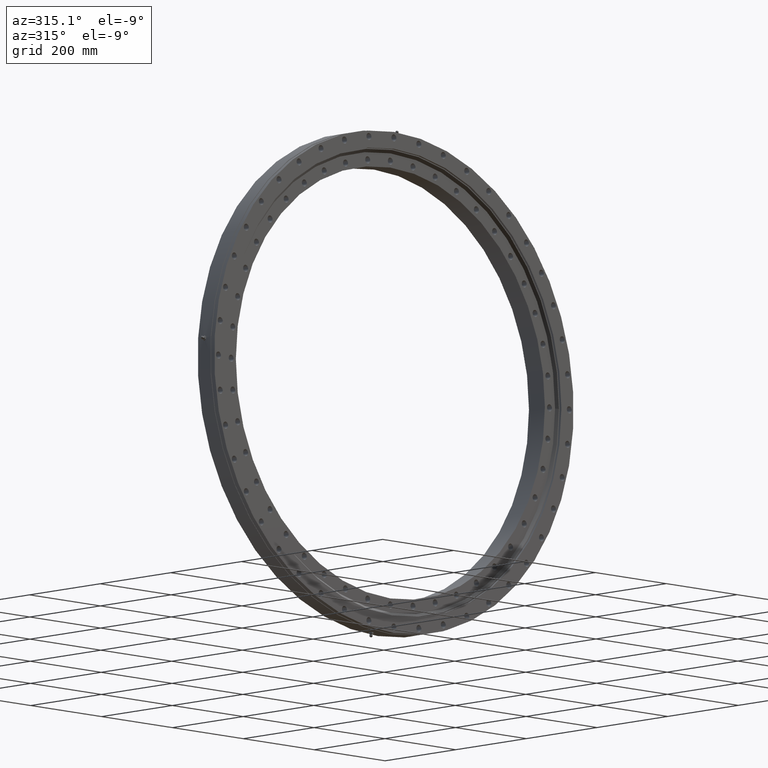
[diagram: clean part render]
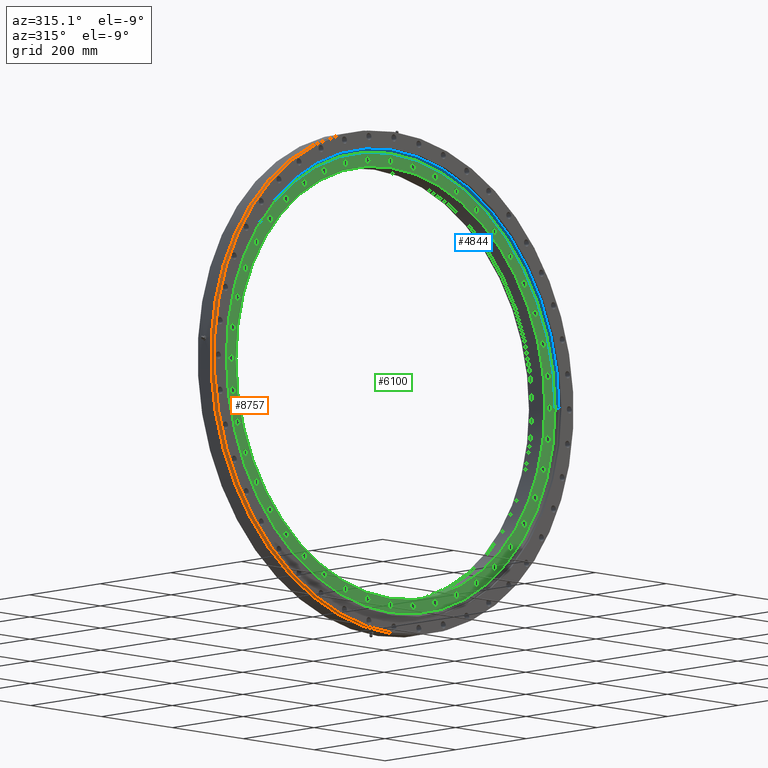
[diagram: same view with three faces highlighted in distinct colors, each labeled with its STEP entity id]
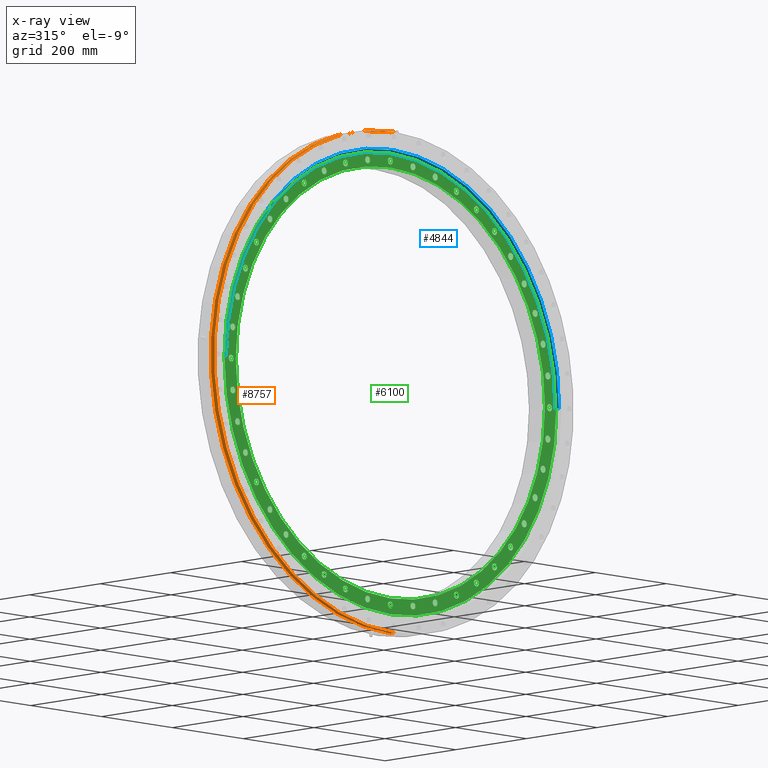
[diagram: x-ray of the same camera — body ghosted, the three highlighted faces saturated]
A machine part, auxiliary view with three faces highlighted in distinct colors.
The next image is the same camera in x-ray (body ghosted, the three faces saturated) — at least one of them is partly hidden behind the body in this view.
Their STEP definitions:

[orange] entity #8757 — the highlighted cylindrical surface (partial cylindrical patch) has radius 507 mm, axis along (-0, 1, -0).
#389 = CARTESIAN_POINT ( 'NONE',  ( 6.208959271677080800E-014, -28.00000000000002500, -507.0000000000000000 ) ) ;
#421 = CARTESIAN_POINT ( 'NONE',  ( 0.0000000000000000000, -18.00000000000004300, 507.0000000000000000 ) ) ;
#473 = ORIENTED_EDGE ( 'NONE', *, *, #7081, .F. ) ;
#497 = DIRECTION ( 'NONE',  ( 0.0000000000000000000, 0.0000000000000000000, 1.000000000000000000 ) ) ;
#606 = ORIENTED_EDGE ( 'NONE', *, *, #4309, .F. ) ;
#683 = DIRECTION ( 'NONE',  ( -0.0000000000000000000, 1.000000000000000000, -5.328613396463909800E-017 ) ) ;
#1358 = VECTOR ( 'NONE', #7434, 1000.000000000000000 ) ;
#1417 = DIRECTION ( 'NONE',  ( -0.0000000000000000000, 1.000000000000000000, -5.328613396463909800E-017 ) ) ;
#1610 = CARTESIAN_POINT ( 'NONE',  ( 6.208959271677080800E-014, 61.10955710955706600, -507.0000000000000000 ) ) ;
#1904 = ORIENTED_EDGE ( 'NONE', *, *, #2210, .F. ) ;
#2150 = VERTEX_POINT ( 'NONE', #389 ) ;
#2210 = EDGE_CURVE ( 'NONE', #8706, #2150, #7052, .T. ) ;
#3097 = CARTESIAN_POINT ( 'NONE',  ( 0.0000000000000000000, 61.10955710955709500, -6.512584093319245700E-015 ) ) ;
#3510 = ORIENTED_EDGE ( 'NONE', *, *, #9268, .T. ) ;
#4309 = EDGE_CURVE ( 'NONE', #6775, #7794, #8379, .T. ) ;
#4872 = DIRECTION ( 'NONE',  ( 0.0000000000000000000, 5.474472508013592600E-017, 1.000000000000000000 ) ) ;
#5116 = VECTOR ( 'NONE', #5934, 1000.000000000000000 ) ;
#5379 = LINE ( 'NONE', #1610, #5116 ) ;
#5435 = CYLINDRICAL_SURFACE ( 'NONE', #6347, 507.0000000000000000 ) ;
#5690 = DIRECTION ( 'NONE',  ( 0.0000000000000000000, -1.000000000000000000, 0.0000000000000000000 ) ) ;
#5879 = CARTESIAN_POINT ( 'NONE',  ( 0.0000000000000000000, -18.00000000000007100, -2.297141635296115300E-015 ) ) ;
#5934 = DIRECTION ( 'NONE',  ( -0.0000000000000000000, 1.000000000000000000, -5.328613396463909800E-017 ) ) ;
#6347 = AXIS2_PLACEMENT_3D ( 'NONE', #3097, #1417, #4872 ) ;
#6770 = DIRECTION ( 'NONE',  ( 0.0000000000000000000, 5.474472508013592600E-017, 1.000000000000000000 ) ) ;
#6775 = VERTEX_POINT ( 'NONE', #7187 ) ;
#6982 = EDGE_LOOP ( 'NONE', ( #473, #1904, #3510, #606 ) ) ;
#7052 = CIRCLE ( 'NONE', #10499, 507.0000000000000000 ) ;
#7081 = EDGE_CURVE ( 'NONE', #2150, #6775, #5379, .T. ) ;
#7187 = CARTESIAN_POINT ( 'NONE',  ( 6.208959271677080800E-014, -18.00000000000009900, -507.0000000000000000 ) ) ;
#7434 = DIRECTION ( 'NONE',  ( -0.0000000000000000000, 1.000000000000000000, -5.328613396463909800E-017 ) ) ;
#7794 = VERTEX_POINT ( 'NONE', #421 ) ;
#8298 = CARTESIAN_POINT ( 'NONE',  ( 0.0000000000000000000, 61.10955710955712300, 507.0000000000000000 ) ) ;
#8379 = CIRCLE ( 'NONE', #11039, 507.0000000000000000 ) ;
#8706 = VERTEX_POINT ( 'NONE', #9190 ) ;
#8757 = ADVANCED_FACE ( 'NONE', ( #10112 ), #5435, .T. ) ;
#9190 = CARTESIAN_POINT ( 'NONE',  ( 0.0000000000000000000, -28.00000000000002500, 507.0000000000000000 ) ) ;
#9268 = EDGE_CURVE ( 'NONE', #8706, #7794, #10649, .T. ) ;
#10112 = FACE_OUTER_BOUND ( 'NONE', #6982, .T. ) ;
#10499 = AXIS2_PLACEMENT_3D ( 'NONE', #10946, #5690, #497 ) ;
#10649 = LINE ( 'NONE', #8298, #1358 ) ;
#10946 = CARTESIAN_POINT ( 'NONE',  ( 0.0000000000000000000, -28.00000000000002500, -1.764280295649726400E-015 ) ) ;
#11039 = AXIS2_PLACEMENT_3D ( 'NONE', #5879, #683, #6770 ) ;

[blue] entity #4844 — the highlighted conical surface has half-angle 49.914 deg.
#246 = VERTEX_POINT ( 'NONE', #8593 ) ;
#861 = CIRCLE ( 'NONE', #5567, 464.7500000000000000 ) ;
#941 = VECTOR ( 'NONE', #2413, 1000.000000000000000 ) ;
#1215 = LINE ( 'NONE', #7632, #941 ) ;
#1587 = DIRECTION ( 'NONE',  ( 1.786923420260216300E-016, 1.000000000000000000, -0.0000000000000000000 ) ) ;
#1596 = EDGE_CURVE ( 'NONE', #3155, #6700, #1215, .T. ) ;
#1781 = ORIENTED_EDGE ( 'NONE', *, *, #5015, .F. ) ;
#2149 = DIRECTION ( 'NONE',  ( -1.786923420260216300E-016, -1.000000000000000000, 0.0000000000000000000 ) ) ;
#2307 = ORIENTED_EDGE ( 'NONE', *, *, #7650, .F. ) ;
#2413 = DIRECTION ( 'NONE',  ( 0.7650765054985576600, -0.6439393921279513700, 0.0000000000000000000 ) ) ;
#3155 = VERTEX_POINT ( 'NONE', #10236 ) ;
#3369 = VERTEX_POINT ( 'NONE', #5290 ) ;
#3728 = CONICAL_SURFACE ( 'NONE', #9417, 470.7500000000000000, 0.8711601305813111400 ) ;
#4363 = CARTESIAN_POINT ( 'NONE',  ( -8.854313453393013300E-015, -18.00000000000000400, 0.0000000000000000000 ) ) ;
#4844 = ADVANCED_FACE ( 'NONE', ( #8922 ), #3728, .F. ) ;
#5015 = EDGE_CURVE ( 'NONE', #3369, #6700, #9635, .T. ) ;
#5241 = DIRECTION ( 'NONE',  ( -1.000000000000000000, 1.791645548077175700E-016, 0.0000000000000000000 ) ) ;
#5290 = CARTESIAN_POINT ( 'NONE',  ( -470.7500000000000000, -23.04999999999991200, 5.765024806986165300E-014 ) ) ;
#5567 = AXIS2_PLACEMENT_3D ( 'NONE', #4363, #10484, #5241 ) ;
#6488 = CARTESIAN_POINT ( 'NONE',  ( -9.756709780624421200E-015, -23.04999999999999400, 0.0000000000000000000 ) ) ;
#6700 = VERTEX_POINT ( 'NONE', #7066 ) ;
#6802 = CARTESIAN_POINT ( 'NONE',  ( -9.756709780624421200E-015, -23.04999999999999400, 0.0000000000000000000 ) ) ;
#7066 = CARTESIAN_POINT ( 'NONE',  ( 470.7500000000000000, -23.05000000000007900, 0.0000000000000000000 ) ) ;
#7632 = CARTESIAN_POINT ( 'NONE',  ( 470.7500000000000000, -23.05000000000007900, 0.0000000000000000000 ) ) ;
#7650 = EDGE_CURVE ( 'NONE', #246, #3369, #8932, .T. ) ;
#7665 = DIRECTION ( 'NONE',  ( -1.000000000000000000, 1.768809917087344500E-016, 0.0000000000000000000 ) ) ;
#8368 = EDGE_LOOP ( 'NONE', ( #2307, #9321, #9021, #1781 ) ) ;
#8593 = CARTESIAN_POINT ( 'NONE',  ( -464.7500000000000000, -17.99999999999991800, 5.728285403011744800E-014 ) ) ;
#8602 = AXIS2_PLACEMENT_3D ( 'NONE', #6802, #1587, #7665 ) ;
#8917 = CARTESIAN_POINT ( 'NONE',  ( -470.7500000000000000, -23.04999999999991200, 5.765024806986165300E-014 ) ) ;
#8922 = FACE_OUTER_BOUND ( 'NONE', #8368, .T. ) ;
#8932 = LINE ( 'NONE', #8917, #10998 ) ;
#9021 = ORIENTED_EDGE ( 'NONE', *, *, #1596, .T. ) ;
#9321 = ORIENTED_EDGE ( 'NONE', *, *, #10555, .T. ) ;
#9417 = AXIS2_PLACEMENT_3D ( 'NONE', #6488, #2149, #9987 ) ;
#9635 = CIRCLE ( 'NONE', #8602, 470.7500000000000000 ) ;
#9987 = DIRECTION ( 'NONE',  ( 1.000000000000000000, -1.768809917087344500E-016, 0.0000000000000000000 ) ) ;
#10236 = CARTESIAN_POINT ( 'NONE',  ( 464.7500000000000000, -18.00000000000008500, 0.0000000000000000000 ) ) ;
#10484 = DIRECTION ( 'NONE',  ( 1.786923420260216300E-016, 1.000000000000000000, -0.0000000000000000000 ) ) ;
#10555 = EDGE_CURVE ( 'NONE', #246, #3155, #861, .T. ) ;
#10690 = DIRECTION ( 'NONE',  ( -0.7650765054985578800, -0.6439393921279510400, 9.369484935616509700E-017 ) ) ;
#10998 = VECTOR ( 'NONE', #10690, 1000.000000000000100 ) ;

[green] entity #6100 — the highlighted planar face has unit normal (-0, 1, -0).
#49 = CARTESIAN_POINT ( 'NONE',  ( 339.3315943413727500, -18.00000000000001400, 287.0324286226642100 ) ) ;
#50 = CIRCLE ( 'NONE', #5557, 6.999999999999992000 ) ;
#53 = FACE_BOUND ( 'NONE', #5189, .T. ) ;
#86 = CARTESIAN_POINT ( 'NONE',  ( -339.3315738140380500, -18.00000000000002100, -301.0324523124753600 ) ) ;
#95 = DIRECTION ( 'NONE',  ( 0.9999999999999945600, 0.0000000000000000000, -1.047197450592783300E-007 ) ) ;
#110 = CARTESIAN_POINT ( 'NONE',  ( 430.8123592025764300, -18.00000000000000700, 133.4978701730202000 ) ) ;
#113 = AXIS2_PLACEMENT_3D ( 'NONE', #8104, #2858, #8992 ) ;
#116 = DIRECTION ( 'NONE',  ( -3.081487911019577400E-033, 1.000000000000000000, -2.727064569436389700E-017 ) ) ;
#124 = DIRECTION ( 'NONE',  ( 0.9898214274293655200, 0.0000000000000000000, -0.1423149387861071800 ) ) ;
#125 = DIRECTION ( 'NONE',  ( -0.9594929852368753200, 0.0000000000000000000, -0.2817325172592424200 ) ) ;
#128 = CARTESIAN_POINT ( 'NONE',  ( 242.7477749830686900, -18.00000000000000700, 377.7228054284907400 ) ) ;
#134 = AXIS2_PLACEMENT_3D ( 'NONE', #2313, #8428, #3193 ) ;
#141 = CARTESIAN_POINT ( 'NONE',  ( 6.494804694057165800E-012, -18.00000000000000400, 449.0000000000000000 ) ) ;
#187 = CIRCLE ( 'NONE', #5328, 6.999999999999981300 ) ;
#190 = FACE_BOUND ( 'NONE', #6846, .T. ) ;
#220 = CIRCLE ( 'NONE', #8613, 7.000000000000014200 ) ;
#251 = EDGE_CURVE ( 'NONE', #6368, #4877, #1553, .T. ) ;
#275 = DIRECTION ( 'NONE',  ( -3.081487911019577400E-033, 1.000000000000000000, -2.727064569436389700E-017 ) ) ;
#299 = DIRECTION ( 'NONE',  ( 0.0000000000000000000, 1.000000000000000000, -2.727064569436388700E-017 ) ) ;
#303 = ORIENTED_EDGE ( 'NONE', *, *, #6107, .T. ) ;
#315 = AXIS2_PLACEMENT_3D ( 'NONE', #5967, #778, #6861 ) ;
#347 = ORIENTED_EDGE ( 'NONE', *, *, #11013, .T. ) ;
#352 = EDGE_CURVE ( 'NONE', #5503, #7214, #5350, .T. ) ;
#358 = AXIS2_PLACEMENT_3D ( 'NONE', #8092, #2850, #8982 ) ;
#361 = CIRCLE ( 'NONE', #9797, 7.000000000000009800 ) ;
#376 = DIRECTION ( 'NONE',  ( 0.5406409242384482300, 0.0000000000000000000, 0.8412534642060005600 ) ) ;
#395 = ORIENTED_EDGE ( 'NONE', *, *, #2876, .T. ) ;
#398 = ORIENTED_EDGE ( 'NONE', *, *, #6035, .T. ) ;
#400 = AXIS2_PLACEMENT_3D ( 'NONE', #651, #6729, #1516 ) ;
#430 = ORIENTED_EDGE ( 'NONE', *, *, #1574, .T. ) ;
#438 = DIRECTION ( 'NONE',  ( -0.9898214373648190900, 0.0000000000000000000, 0.1423148696835417300 ) ) ;
#459 = FACE_BOUND ( 'NONE', #8313, .T. ) ;
#461 = ORIENTED_EDGE ( 'NONE', *, *, #5451, .T. ) ;
#490 = CARTESIAN_POINT ( 'NONE',  ( -448.9999999999997700, -18.00000000000001400, 1.567306167250084400E-005 ) ) ;
#501 = AXIS2_PLACEMENT_3D ( 'NONE', #3652, #9791, #4537 ) ;
#521 = DIRECTION ( 'NONE',  ( -3.081487911019577400E-033, 1.000000000000000000, -2.727064569436389700E-017 ) ) ;
#541 = DIRECTION ( 'NONE',  ( -3.081487911019577400E-033, 1.000000000000000000, -2.727064569436389100E-017 ) ) ;
#567 = DIRECTION ( 'NONE',  ( 3.081487911019577400E-033, 1.000000000000000000, -2.727064569436389700E-017 ) ) ;
#600 = DIRECTION ( 'NONE',  ( 3.081487911019577400E-033, 1.000000000000000000, -2.727064569436389400E-017 ) ) ;
#616 = CIRCLE ( 'NONE', #5022, 7.000000000000016000 ) ;
#628 = CARTESIAN_POINT ( 'NONE',  ( -242.7477486130443400, -18.00000000000002100, -384.7228223754797800 ) ) ;
#633 = CIRCLE ( 'NONE', #4501, 7.000000000000005300 ) ;
#651 = CARTESIAN_POINT ( 'NONE',  ( -408.4247742006823500, -18.00000000000002500, -186.5213226929341500 ) ) ;
#673 = EDGE_CURVE ( 'NONE', #9057, #3988, #50, .T. ) ;
#684 = CARTESIAN_POINT ( 'NONE',  ( 430.8123327089139100, -18.00000000000001800, -126.4979604021507500 ) ) ;
#686 = DIRECTION ( 'NONE',  ( 0.0000000000000000000, 1.000000000000000000, -2.727064569436389400E-017 ) ) ;
#719 = CIRCLE ( 'NONE', #4546, 7.000000000000012400 ) ;
#723 = CARTESIAN_POINT ( 'NONE',  ( -63.89936097437805500, -18.00000000000000400, 437.4298276073132600 ) ) ;
#734 = FACE_BOUND ( 'NONE', #8000, .T. ) ;
#752 = CARTESIAN_POINT ( 'NONE',  ( 126.4978852112069200, -18.00000000000002500, -423.8123547869678900 ) ) ;
#765 = CIRCLE ( 'NONE', #1736, 7.000000000000009800 ) ;
#778 = DIRECTION ( 'NONE',  ( 0.0000000000000000000, 1.000000000000000000, -2.727064569436388700E-017 ) ) ;
#783 = CIRCLE ( 'NONE', #5654, 7.000000000000009800 ) ;
#815 = AXIS2_PLACEMENT_3D ( 'NONE', #7206, #1980, #8066 ) ;
#828 = CARTESIAN_POINT ( 'NONE',  ( -3.134611684921522800E-005, -18.00000000000002500, -448.9999999999989200 ) ) ;
#846 = EDGE_CURVE ( 'NONE', #9174, #1042, #5075, .T. ) ;
#851 = ORIENTED_EDGE ( 'NONE', *, *, #9774, .T. ) ;
#852 = ORIENTED_EDGE ( 'NONE', *, *, #3064, .T. ) ;
#865 = AXIS2_PLACEMENT_3D ( 'NONE', #10009, #4762, #10896 ) ;
#881 = DIRECTION ( 'NONE',  ( 3.081487911019577400E-033, 1.000000000000000000, -2.727064569436389100E-017 ) ) ;
#899 = VERTEX_POINT ( 'NONE', #10377 ) ;
#930 = ORIENTED_EDGE ( 'NONE', *, *, #4223, .T. ) ;
#931 = EDGE_CURVE ( 'NONE', #4125, #8358, #187, .T. ) ;
#952 = AXIS2_PLACEMENT_3D ( 'NONE', #7723, #2491, #8608 ) ;
#974 = CARTESIAN_POINT ( 'NONE',  ( 63.89942302849456700, -18.00000000000000400, 451.4298186852739700 ) ) ;
#1004 = DIRECTION ( 'NONE',  ( 0.5406409242384482300, 0.0000000000000000000, 0.8412534642060005600 ) ) ;
#1007 = FACE_BOUND ( 'NONE', #9573, .T. ) ;
#1016 = DIRECTION ( 'NONE',  ( 0.0000000000000000000, 0.0000000000000000000, 1.000000000000000000 ) ) ;
#1028 = VERTEX_POINT ( 'NONE', #6190 ) ;
#1033 = VERTEX_POINT ( 'NONE', #7080 ) ;
#1042 = VERTEX_POINT ( 'NONE', #3555 ) ;
#1067 = VERTEX_POINT ( 'NONE', #3108 ) ;
#1111 = EDGE_LOOP ( 'NONE', ( #4645, #8009 ) ) ;
#1129 = CARTESIAN_POINT ( 'NONE',  ( 242.7476958729808100, -18.00000000000002100, -377.7228562694595600 ) ) ;
#1131 = EDGE_CURVE ( 'NONE', #7201, #10240, #719, .T. ) ;
#1132 = DIRECTION ( 'NONE',  ( -9.244463733058732100E-033, 1.000000000000000000, -2.727064569436389100E-017 ) ) ;
#1135 = AXIS2_PLACEMENT_3D ( 'NONE', #3202, #9325, #4076 ) ;
#1142 = CARTESIAN_POINT ( 'NONE',  ( 242.7477749830686900, -18.00000000000000700, 370.7228054284907400 ) ) ;
#1143 = CARTESIAN_POINT ( 'NONE',  ( 408.4247481573858100, -18.00000000000002500, -193.5213797197950500 ) ) ;
#1149 = VERTEX_POINT ( 'NONE', #9317 ) ;
#1166 = ORIENTED_EDGE ( 'NONE', *, *, #10868, .T. ) ;
#1200 = ORIENTED_EDGE ( 'NONE', *, *, #3850, .T. ) ;
#1270 = DIRECTION ( 'NONE',  ( 3.081487911019577400E-033, 1.000000000000000000, -2.727064569436389700E-017 ) ) ;
#1279 = FACE_BOUND ( 'NONE', #4821, .T. ) ;
#1300 = EDGE_LOOP ( 'NONE', ( #2131, #10909 ) ) ;
#1301 = AXIS2_PLACEMENT_3D ( 'NONE', #1470, #7554, #2318 ) ;
#1303 = CARTESIAN_POINT ( 'NONE',  ( -377.7228477959670800, -18.00000000000002500, -249.7477090579944000 ) ) ;
#1325 = AXIS2_PLACEMENT_3D ( 'NONE', #7055, #1831, #7923 ) ;
#1332 = VERTEX_POINT ( 'NONE', #8728 ) ;
#1356 = DIRECTION ( 'NONE',  ( -0.9999999999999994400, 0.0000000000000000000, 3.490658168642584400E-008 ) ) ;
#1381 = EDGE_CURVE ( 'NONE', #8274, #9846, #7508, .T. ) ;
#1412 = ORIENTED_EDGE ( 'NONE', *, *, #8421, .T. ) ;
#1433 = DIRECTION ( 'NONE',  ( 7.703719777548943400E-034, 1.000000000000000000, -2.727064569436389100E-017 ) ) ;
#1446 = ORIENTED_EDGE ( 'NONE', *, *, #673, .T. ) ;
#1470 = CARTESIAN_POINT ( 'NONE',  ( 444.4298342988356000, -18.00000000000001400, 63.89931443379942500 ) ) ;
#1492 = CARTESIAN_POINT ( 'NONE',  ( -186.5213654630830700, -18.00000000000001800, -415.4247546682093500 ) ) ;
#1494 = DIRECTION ( 'NONE',  ( -3.081487911019577400E-033, 1.000000000000000000, -2.727064569436389700E-017 ) ) ;
#1495 = EDGE_CURVE ( 'NONE', #8973, #3548, #4054, .T. ) ;
#1496 = CIRCLE ( 'NONE', #3793, 6.999999999999990200 ) ;
#1503 = DIRECTION ( 'NONE',  ( -3.081487911019577400E-033, 1.000000000000000000, -2.727064569436388700E-017 ) ) ;
#1513 = ORIENTED_EDGE ( 'NONE', *, *, #7638, .T. ) ;
#1516 = DIRECTION ( 'NONE',  ( -0.9096320138099771600, 0.0000000000000000000, -0.4154149725900663200 ) ) ;
#1530 = ORIENTED_EDGE ( 'NONE', *, *, #10916, .T. ) ;
#1545 = FACE_BOUND ( 'NONE', #5731, .T. ) ;
#1549 = ORIENTED_EDGE ( 'NONE', *, *, #6102, .T. ) ;
#1552 = DIRECTION ( 'NONE',  ( 0.9594929458995895600, 0.0000000000000000000, -0.2817326512297204700 ) ) ;
#1553 = CIRCLE ( 'NONE', #7745, 6.999999999999990200 ) ;
#1559 = AXIS2_PLACEMENT_3D ( 'NONE', #5882, #686, #6774 ) ;
#1563 = EDGE_CURVE ( 'NONE', #899, #2803, #7880, .T. ) ;
#1569 = ORIENTED_EDGE ( 'NONE', *, *, #7195, .T. ) ;
#1574 = EDGE_CURVE ( 'NONE', #4571, #1067, #10219, .T. ) ;
#1609 = ORIENTED_EDGE ( 'NONE', *, *, #9940, .T. ) ;
#1632 = CARTESIAN_POINT ( 'NONE',  ( -126.4979453639648000, -18.00000000000002500, -430.8123371245250700 ) ) ;
#1661 = CARTESIAN_POINT ( 'NONE',  ( -339.3315532866930700, -18.00000000000001400, 287.0324760022949700 ) ) ;
#1671 = EDGE_LOOP ( 'NONE', ( #5060, #8254 ) ) ;
#1687 = DIRECTION ( 'NONE',  ( -6.981316337285155500E-008, 0.0000000000000000000, -0.9999999999999975600 ) ) ;
#1698 = VERTEX_POINT ( 'NONE', #6932 ) ;
#1736 = AXIS2_PLACEMENT_3D ( 'NONE', #4584, #10708, #5440 ) ;
#1757 = DIRECTION ( 'NONE',  ( 3.081487911019577400E-033, 1.000000000000000000, -2.727064569436389100E-017 ) ) ;
#1765 = VERTEX_POINT ( 'NONE', #11299 ) ;
#1769 = VERTEX_POINT ( 'NONE', #8682 ) ;
#1771 = DIRECTION ( 'NONE',  ( 3.081487911019577400E-033, 1.000000000000000000, -2.727064569436389400E-017 ) ) ;
#1774 = CIRCLE ( 'NONE', #1325, 6.999999999999990200 ) ;
#1775 = CARTESIAN_POINT ( 'NONE',  ( 63.89932994732569700, -18.00000000000002500, -444.4298320683286600 ) ) ;
#1777 = CARTESIAN_POINT ( 'NONE',  ( -430.8123415401356600, -18.00000000000000700, 119.4979303257788000 ) ) ;
#1800 = EDGE_LOOP ( 'NONE', ( #8228, #5261 ) ) ;
#1806 = FACE_BOUND ( 'NONE', #9569, .T. ) ;
#1831 = DIRECTION ( 'NONE',  ( 1.540743955509788700E-033, 1.000000000000000000, -2.727064569436389400E-017 ) ) ;
#1832 = ORIENTED_EDGE ( 'NONE', *, *, #4760, .F. ) ;
#1854 = AXIS2_PLACEMENT_3D ( 'NONE', #2966, #9103, #3863 ) ;
#1872 = AXIS2_PLACEMENT_3D ( 'NONE', #2364, #8462, #3233 ) ;
#1886 = VERTEX_POINT ( 'NONE', #110 ) ;
#1920 = CARTESIAN_POINT ( 'NONE',  ( 408.4247872223249400, -18.00000000000001100, 186.5212941795081200 ) ) ;
#1935 = DIRECTION ( 'NONE',  ( 3.081487911019577400E-033, 1.000000000000000000, -2.727064569436389700E-017 ) ) ;
#1957 = AXIS2_PLACEMENT_3D ( 'NONE', #828, #6924, #1687 ) ;
#1958 = VERTEX_POINT ( 'NONE', #10721 ) ;
#1961 = CARTESIAN_POINT ( 'NONE',  ( -408.4247742006823500, -18.00000000000002500, -179.5213226929341500 ) ) ;
#1969 = ORIENTED_EDGE ( 'NONE', *, *, #5056, .T. ) ;
#1980 = DIRECTION ( 'NONE',  ( 7.703719777548943400E-034, 1.000000000000000000, -2.727064569436389100E-017 ) ) ;
#1993 = DIRECTION ( 'NONE',  ( 0.5406407480467390100, 0.0000000000000000000, -0.8412535774375419200 ) ) ;
#1998 = VERTEX_POINT ( 'NONE', #1143 ) ;
#2035 = CIRCLE ( 'NONE', #315, 6.999999999999974200 ) ;
#2050 = ORIENTED_EDGE ( 'NONE', *, *, #5064, .T. ) ;
#2082 = FACE_BOUND ( 'NONE', #3180, .T. ) ;
#2099 = ORIENTED_EDGE ( 'NONE', *, *, #4067, .T. ) ;
#2131 = ORIENTED_EDGE ( 'NONE', *, *, #10088, .T. ) ;
#2148 = AXIS2_PLACEMENT_3D ( 'NONE', #5773, #567, #6652 ) ;
#2157 = CARTESIAN_POINT ( 'NONE',  ( -3.134611684921522800E-005, -18.00000000000002500, -448.9999999999989200 ) ) ;
#2163 = CARTESIAN_POINT ( 'NONE',  ( -430.8123415401356600, -18.00000000000000700, 126.4979303257788000 ) ) ;
#2165 = CIRCLE ( 'NONE', #9669, 7.000000000000016900 ) ;
#2189 = VERTEX_POINT ( 'NONE', #3872 ) ;
#2196 = CARTESIAN_POINT ( 'NONE',  ( 186.5213939765068000, -18.00000000000000400, 415.4247416465619300 ) ) ;
#2204 = CIRCLE ( 'NONE', #4492, 6.999999999999994700 ) ;
#2206 = AXIS2_PLACEMENT_3D ( 'NONE', #6715, #1503, #7595 ) ;
#2218 = CARTESIAN_POINT ( 'NONE',  ( -126.4979453639648000, -18.00000000000002500, -423.8123371245250200 ) ) ;
#2232 = AXIS2_PLACEMENT_3D ( 'NONE', #9826, #4579, #10701 ) ;
#2244 = ORIENTED_EDGE ( 'NONE', *, *, #9387, .T. ) ;
#2253 = CIRCLE ( 'NONE', #5963, 7.000000000000009800 ) ;
#2278 = CARTESIAN_POINT ( 'NONE',  ( -408.4247611790323700, -18.00000000000001100, 186.5213512063710100 ) ) ;
#2313 = CARTESIAN_POINT ( 'NONE',  ( 0.0000000000000000000, -18.00000000000001400, -3.553121410813607700E-016 ) ) ;
#2318 = DIRECTION ( 'NONE',  ( 0.9898214572357118000, 0.0000000000000000000, 0.1423147314784101700 ) ) ;
#2326 = VERTEX_POINT ( 'NONE', #4127 ) ;
#2328 = ORIENTED_EDGE ( 'NONE', *, *, #7579, .T. ) ;
#2350 = ORIENTED_EDGE ( 'NONE', *, *, #7906, .T. ) ;
#2364 = CARTESIAN_POINT ( 'NONE',  ( 444.4298342988356000, -18.00000000000001400, 63.89931443379942500 ) ) ;
#2392 = EDGE_LOOP ( 'NONE', ( #4751, #9909 ) ) ;
#2405 = CARTESIAN_POINT ( 'NONE',  ( -294.0324878471994300, -18.00000000000002100, -339.3315430230242100 ) ) ;
#2416 = AXIS2_PLACEMENT_3D ( 'NONE', #4217, #10342, #5100 ) ;
#2426 = CARTESIAN_POINT ( 'NONE',  ( -377.7228477959670800, -18.00000000000002500, -235.7477090579944000 ) ) ;
#2428 = EDGE_CURVE ( 'NONE', #5738, #7836, #7191, .T. ) ;
#2458 = EDGE_CURVE ( 'NONE', #7836, #5738, #11305, .T. ) ;
#2462 = DIRECTION ( 'NONE',  ( 0.0000000000000000000, 1.000000000000000000, -2.727064569436389700E-017 ) ) ;
#2469 = PLANE ( 'NONE',  #3906 ) ;
#2472 = FACE_BOUND ( 'NONE', #1800, .T. ) ;
#2491 = DIRECTION ( 'NONE',  ( -3.081487911019577400E-033, 1.000000000000000000, -2.727064569436389100E-017 ) ) ;
#2530 = AXIS2_PLACEMENT_3D ( 'NONE', #3426, #9561, #4326 ) ;
#2532 = EDGE_CURVE ( 'NONE', #9769, #8626, #11030, .T. ) ;
#2536 = CARTESIAN_POINT ( 'NONE',  ( 339.3315943413727500, -18.00000000000001400, 301.0324286226642100 ) ) ;
#2544 = ORIENTED_EDGE ( 'NONE', *, *, #6631, .T. ) ;
#2570 = DIRECTION ( 'NONE',  ( 0.0000000000000000000, 1.000000000000000000, -2.727064569436389400E-017 ) ) ;
#2588 = VERTEX_POINT ( 'NONE', #4277 ) ;
#2611 = CIRCLE ( 'NONE', #1135, 7.000000000000006200 ) ;
#2646 = CIRCLE ( 'NONE', #1957, 7.000000000000023100 ) ;
#2647 = DIRECTION ( 'NONE',  ( 0.1423147660296931200, 0.0000000000000000000, -0.9898214522679904500 ) ) ;
#2656 = ORIENTED_EDGE ( 'NONE', *, *, #11058, .T. ) ;
#2668 = CARTESIAN_POINT ( 'NONE',  ( 0.0000000000000000000, -18.00000000000001100, -3.553121410813609700E-016 ) ) ;
#2689 = CARTESIAN_POINT ( 'NONE',  ( -186.5213369496467800, -18.00000000000000400, 408.4247676898602900 ) ) ;
#2690 = ORIENTED_EDGE ( 'NONE', *, *, #10109, .T. ) ;
#2737 = CARTESIAN_POINT ( 'NONE',  ( -408.4247611790323700, -18.00000000000001100, 186.5213512063710100 ) ) ;
#2748 = FACE_BOUND ( 'NONE', #5687, .T. ) ;
#2750 = CARTESIAN_POINT ( 'NONE',  ( -408.4247611790323700, -18.00000000000001100, 179.5213512063710100 ) ) ;
#2783 = DIRECTION ( 'NONE',  ( 0.9096320428114077500, 0.0000000000000000000, 0.4154149090857782200 ) ) ;
#2791 = CARTESIAN_POINT ( 'NONE',  ( -242.7477486130443400, -18.00000000000002100, -377.7228223754797800 ) ) ;
#2796 = CIRCLE ( 'NONE', #3023, 6.999999999999992000 ) ;
#2803 = VERTEX_POINT ( 'NONE', #8021 ) ;
#2824 = EDGE_LOOP ( 'NONE', ( #851, #2350 ) ) ;
#2840 = AXIS2_PLACEMENT_3D ( 'NONE', #7746, #11255, #4241 ) ;
#2841 = DIRECTION ( 'NONE',  ( -3.081487911019577400E-033, 1.000000000000000000, -2.727064569436389700E-017 ) ) ;
#2850 = DIRECTION ( 'NONE',  ( -7.703719777548943400E-034, 1.000000000000000000, -2.727064569436389700E-017 ) ) ;
#2851 = AXIS2_PLACEMENT_3D ( 'NONE', #9404, #4160, #10279 ) ;
#2857 = VERTEX_POINT ( 'NONE', #5487 ) ;
#2858 = DIRECTION ( 'NONE',  ( -4.622231866529366000E-033, 1.000000000000000000, -2.727064569436390300E-017 ) ) ;
#2871 = VERTEX_POINT ( 'NONE', #8244 ) ;
#2876 = EDGE_CURVE ( 'NONE', #10248, #6180, #3341, .T. ) ;
#2878 = CARTESIAN_POINT ( 'NONE',  ( -339.3315532866930700, -18.00000000000001400, 301.0324760022949700 ) ) ;
#2881 = CIRCLE ( 'NONE', #4252, 6.999999999999991100 ) ;
#2904 = DIRECTION ( 'NONE',  ( -0.0000000000000000000, 1.000000000000000000, -2.727064569436389700E-017 ) ) ;
#2908 = CIRCLE ( 'NONE', #3174, 7.000000000000005300 ) ;
#2911 = EDGE_CURVE ( 'NONE', #2871, #10310, #9790, .T. ) ;
#2929 = CARTESIAN_POINT ( 'NONE',  ( -126.4979152875799700, -18.00000000000000400, 430.8123459557493200 ) ) ;
#2935 = DIRECTION ( 'NONE',  ( 3.081487911019577400E-033, 1.000000000000000000, -2.727064569436389700E-017 ) ) ;
#2966 = CARTESIAN_POINT ( 'NONE',  ( -377.7228477959670800, -18.00000000000002500, -242.7477090579944000 ) ) ;
#2999 = CARTESIAN_POINT ( 'NONE',  ( -448.9999999999997700, -18.00000000000001400, 7.000015673061674300 ) ) ;
#3008 = DIRECTION ( 'NONE',  ( -6.981316337285155500E-008, 0.0000000000000000000, -0.9999999999999975600 ) ) ;
#3010 = FACE_BOUND ( 'NONE', #8914, .T. ) ;
#3023 = AXIS2_PLACEMENT_3D ( 'NONE', #5459, #275, #6343 ) ;
#3024 = DIRECTION ( 'NONE',  ( -0.9594929655682351600, 0.0000000000000000000, 0.2817325842444811100 ) ) ;
#3033 = EDGE_LOOP ( 'NONE', ( #9336, #7010 ) ) ;
#3037 = CIRCLE ( 'NONE', #815, 7.000000000000022200 ) ;
#3043 = EDGE_CURVE ( 'NONE', #3631, #7637, #783, .T. ) ;
#3053 = DIRECTION ( 'NONE',  ( -4.622231866529366000E-033, 1.000000000000000000, -2.727064569436390300E-017 ) ) ;
#3064 = EDGE_CURVE ( 'NONE', #10240, #7201, #10741, .T. ) ;
#3103 = VERTEX_POINT ( 'NONE', #11021 ) ;
#3108 = CARTESIAN_POINT ( 'NONE',  ( 6.495661946816568900E-012, -18.00000000000000400, 442.0000000000000000 ) ) ;
#3132 = CIRCLE ( 'NONE', #7476, 6.999999999999991100 ) ;
#3141 = DIRECTION ( 'NONE',  ( -0.9096319848085406800, 0.0000000000000000000, 0.4154150360943553200 ) ) ;
#3145 = ORIENTED_EDGE ( 'NONE', *, *, #2911, .T. ) ;
#3156 = ORIENTED_EDGE ( 'NONE', *, *, #11110, .T. ) ;
#3164 = CIRCLE ( 'NONE', #11176, 7.000000000000004400 ) ;
#3174 = AXIS2_PLACEMENT_3D ( 'NONE', #10821, #5568, #376 ) ;
#3180 = EDGE_LOOP ( 'NONE', ( #9646, #1446 ) ) ;
#3191 = CIRCLE ( 'NONE', #3614, 7.000000000000022200 ) ;
#3193 = DIRECTION ( 'NONE',  ( 0.0000000000000000000, 2.963756072144037900E-017, 1.000000000000000000 ) ) ;
#3196 = CIRCLE ( 'NONE', #3394, 6.999999999999976000 ) ;
#3202 = CARTESIAN_POINT ( 'NONE',  ( -186.5213369496467800, -18.00000000000000400, 408.4247676898602900 ) ) ;
#3209 = DIRECTION ( 'NONE',  ( 3.081487911019577400E-033, 1.000000000000000000, -2.727064569436389700E-017 ) ) ;
#3212 = EDGE_LOOP ( 'NONE', ( #5578, #6288 ) ) ;
#3233 = DIRECTION ( 'NONE',  ( 0.9898214572357118000, 0.0000000000000000000, 0.1423147314784101700 ) ) ;
#3234 = CARTESIAN_POINT ( 'NONE',  ( 294.0324404675698700, -18.00000000000002100, -346.3315840777056600 ) ) ;
#3240 = AXIS2_PLACEMENT_3D ( 'NONE', #2929, #9054, #3809 ) ;
#3252 = CARTESIAN_POINT ( 'NONE',  ( 377.7228647429517400, -18.00000000000001100, 242.7476826879667700 ) ) ;
#3260 = DIRECTION ( 'NONE',  ( -1.540743955509788700E-033, 1.000000000000000000, -2.727064569436389400E-017 ) ) ;
#3269 = CARTESIAN_POINT ( 'NONE',  ( -377.7228477959670800, -18.00000000000002500, -242.7477090579944000 ) ) ;
#3270 = DIRECTION ( 'NONE',  ( -0.6548607747153580800, 0.0000000000000000000, -0.7557495390267869900 ) ) ;
#3272 = VERTEX_POINT ( 'NONE', #11289 ) ;
#3283 = DIRECTION ( 'NONE',  ( 0.0000000000000000000, 1.000000000000000000, -2.727064569436389700E-017 ) ) ;
#3286 = AXIS2_PLACEMENT_3D ( 'NONE', #5089, #11220, #5962 ) ;
#3291 = EDGE_CURVE ( 'NONE', #6560, #1033, #10469, .T. ) ;
#3294 = FACE_BOUND ( 'NONE', #3983, .T. ) ;
#3316 = AXIS2_PLACEMENT_3D ( 'NONE', #2689, #8812, #3560 ) ;
#3329 = CARTESIAN_POINT ( 'NONE',  ( 186.5213084362213700, -18.00000000000001800, -408.4247807115038400 ) ) ;
#3330 = CARTESIAN_POINT ( 'NONE',  ( -3.134611684835797600E-005, -18.00000000000002500, -455.9999999999989200 ) ) ;
#3341 = CIRCLE ( 'NONE', #865, 6.999999999999974200 ) ;
#3382 = CARTESIAN_POINT ( 'NONE',  ( 63.89932994732569700, -18.00000000000002500, -444.4298320683286600 ) ) ;
#3394 = AXIS2_PLACEMENT_3D ( 'NONE', #6330, #1132, #7223 ) ;
#3426 = CARTESIAN_POINT ( 'NONE',  ( -430.8123503713588300, -18.00000000000001800, -126.4979002493936400 ) ) ;
#3436 = CARTESIAN_POINT ( 'NONE',  ( 377.7228647429517400, -18.00000000000001100, 249.7476826879667700 ) ) ;
#3439 = EDGE_LOOP ( 'NONE', ( #5466, #8782 ) ) ;
#3460 = CARTESIAN_POINT ( 'NONE',  ( 377.7228139019855500, -18.00000000000002500, -249.7477617980565900 ) ) ;
#3467 = CIRCLE ( 'NONE', #10816, 7.000000000000005300 ) ;
#3469 = DIRECTION ( 'NONE',  ( -1.540743955509788700E-033, 1.000000000000000000, -2.727064569436389700E-017 ) ) ;
#3481 = CARTESIAN_POINT ( 'NONE',  ( -444.4298253768028000, -18.00000000000001400, 63.89937648791691100 ) ) ;
#3495 = DIRECTION ( 'NONE',  ( 3.081487911019577400E-033, 1.000000000000000000, -2.727064569436389100E-017 ) ) ;
#3511 = EDGE_CURVE ( 'NONE', #4370, #4560, #9089, .T. ) ;
#3533 = AXIS2_PLACEMENT_3D ( 'NONE', #8147, #2904, #9026 ) ;
#3534 = DIRECTION ( 'NONE',  ( 0.0000000000000000000, 2.387234141252486500E-017, 1.000000000000000000 ) ) ;
#3538 = CIRCLE ( 'NONE', #4915, 7.000000000000011500 ) ;
#3546 = AXIS2_PLACEMENT_3D ( 'NONE', #2278, #8383, #3141 ) ;
#3548 = VERTEX_POINT ( 'NONE', #2878 ) ;
#3549 = DIRECTION ( 'NONE',  ( -1.540743955509788700E-033, 1.000000000000000000, -2.727064569436389700E-017 ) ) ;
#3555 = CARTESIAN_POINT ( 'NONE',  ( -377.7228308489737300, -18.00000000000001100, 235.7477354280315500 ) ) ;
#3560 = DIRECTION ( 'NONE',  ( -0.4154150043422111200, 0.0000000000000000000, 0.9096319993092595300 ) ) ;
#3563 = EDGE_CURVE ( 'NONE', #1998, #9457, #3611, .T. ) ;
#3566 = FACE_BOUND ( 'NONE', #7739, .T. ) ;
#3589 = VERTEX_POINT ( 'NONE', #10807 ) ;
#3607 = DIRECTION ( 'NONE',  ( 3.081487911019577400E-033, 1.000000000000000000, -2.727064569436389700E-017 ) ) ;
#3611 = CIRCLE ( 'NONE', #8155, 6.999999999999984900 ) ;
#3614 = AXIS2_PLACEMENT_3D ( 'NONE', #8502, #3260, #9397 ) ;
#3618 = CIRCLE ( 'NONE', #9560, 6.999999999999991100 ) ;
#3619 = DIRECTION ( 'NONE',  ( -0.9096319848085406800, 0.0000000000000000000, 0.4154150360943553200 ) ) ;
#3621 = CARTESIAN_POINT ( 'NONE',  ( 63.89932994732569700, -18.00000000000002500, -437.4298320683286600 ) ) ;
#3631 = VERTEX_POINT ( 'NONE', #1961 ) ;
#3634 = ORIENTED_EDGE ( 'NONE', *, *, #3981, .T. ) ;
#3650 = EDGE_CURVE ( 'NONE', #3726, #6674, #5382, .T. ) ;
#3652 = CARTESIAN_POINT ( 'NONE',  ( 339.3315943413727500, -18.00000000000001400, 294.0324286226642100 ) ) ;
#3661 = AXIS2_PLACEMENT_3D ( 'NONE', #9917, #4662, #10786 ) ;
#3667 = DIRECTION ( 'NONE',  ( -0.5406408655078820400, 0.0000000000000000000, -0.8412535019498510500 ) ) ;
#3679 = VERTEX_POINT ( 'NONE', #5489 ) ;
#3687 = ORIENTED_EDGE ( 'NONE', *, *, #3291, .T. ) ;
#3699 = EDGE_CURVE ( 'NONE', #8626, #9769, #7175, .T. ) ;
#3714 = CARTESIAN_POINT ( 'NONE',  ( 444.4298342988356000, -18.00000000000001400, 56.89931443379941800 ) ) ;
#3726 = VERTEX_POINT ( 'NONE', #6436 ) ;
#3736 = CIRCLE ( 'NONE', #11116, 6.999999999999997300 ) ;
#3751 = CIRCLE ( 'NONE', #10286, 7.000000000000022200 ) ;
#3783 = EDGE_CURVE ( 'NONE', #1028, #6587, #4310, .T. ) ;
#3793 = AXIS2_PLACEMENT_3D ( 'NONE', #6075, #881, #6968 ) ;
#3800 = DIRECTION ( 'NONE',  ( -3.081487911019577400E-033, 1.000000000000000000, -2.727064569436389100E-017 ) ) ;
#3802 = CIRCLE ( 'NONE', #3286, 6.999999999999986700 ) ;
#3809 = DIRECTION ( 'NONE',  ( -0.2817325507518626500, 0.0000000000000000000, 0.9594929754025555100 ) ) ;
#3824 = DIRECTION ( 'NONE',  ( -3.081487911019577400E-033, 1.000000000000000000, -2.727064569436389400E-017 ) ) ;
#3829 = CARTESIAN_POINT ( 'NONE',  ( 294.0324404675698700, -18.00000000000002100, -332.3315840777056600 ) ) ;
#3848 = FACE_BOUND ( 'NONE', #9735, .T. ) ;
#3850 = EDGE_CURVE ( 'NONE', #1149, #4592, #3751, .T. ) ;
#3863 = DIRECTION ( 'NONE',  ( -0.8412535585656224500, 0.0000000000000000000, -0.5406407774120233200 ) ) ;
#3871 = CARTESIAN_POINT ( 'NONE',  ( 444.4298342988356000, -18.00000000000001400, 70.89931443379943200 ) ) ;
#3872 = CARTESIAN_POINT ( 'NONE',  ( 186.5213084362213700, -18.00000000000001800, -401.4247807115038400 ) ) ;
#3876 = EDGE_CURVE ( 'NONE', #6080, #1332, #5519, .T. ) ;
#3906 = AXIS2_PLACEMENT_3D ( 'NONE', #9665, #10527, #5282 ) ;
#3910 = CARTESIAN_POINT ( 'NONE',  ( 186.5213084362213700, -18.00000000000001800, -415.4247807115038400 ) ) ;
#3915 = ORIENTED_EDGE ( 'NONE', *, *, #11120, .T. ) ;
#3919 = EDGE_CURVE ( 'NONE', #9709, #2189, #3191, .T. ) ;
#3926 = CARTESIAN_POINT ( 'NONE',  ( 242.7476958729808100, -18.00000000000002100, -377.7228562694595600 ) ) ;
#3928 = DIRECTION ( 'NONE',  ( 3.081487911019577400E-033, 1.000000000000000000, -2.727064569436389400E-017 ) ) ;
#3929 = ORIENTED_EDGE ( 'NONE', *, *, #8930, .T. ) ;
#3954 = AXIS2_PLACEMENT_3D ( 'NONE', #3269, #9410, #4164 ) ;
#3981 = EDGE_CURVE ( 'NONE', #6674, #3726, #7305, .T. ) ;
#3983 = EDGE_LOOP ( 'NONE', ( #4660, #398 ) ) ;
#3988 = VERTEX_POINT ( 'NONE', #5975 ) ;
#4006 = CIRCLE ( 'NONE', #952, 6.999999999999982200 ) ;
#4010 = EDGE_CURVE ( 'NONE', #3589, #10626, #4705, .T. ) ;
#4013 = AXIS2_PLACEMENT_3D ( 'NONE', #5734, #541, #6620 ) ;
#4023 = CARTESIAN_POINT ( 'NONE',  ( 186.5213939765068000, -18.00000000000000400, 401.4247416465618700 ) ) ;
#4054 = CIRCLE ( 'NONE', #2148, 7.000000000000005300 ) ;
#4067 = EDGE_CURVE ( 'NONE', #7214, #5503, #10314, .T. ) ;
#4076 = DIRECTION ( 'NONE',  ( -0.4154150043422111200, 0.0000000000000000000, 0.9096319993092595300 ) ) ;
#4095 = EDGE_CURVE ( 'NONE', #7577, #5769, #5647, .T. ) ;
#4121 = FACE_BOUND ( 'NONE', #11324, .T. ) ;
#4125 = VERTEX_POINT ( 'NONE', #9855 ) ;
#4127 = CARTESIAN_POINT ( 'NONE',  ( 294.0325115370070000, -18.00000000000000700, 332.3315224956853600 ) ) ;
#4128 = VERTEX_POINT ( 'NONE', #10742 ) ;
#4142 = DIRECTION ( 'NONE',  ( 0.8412535963094622800, 0.0000000000000000000, 0.5406407186814513600 ) ) ;
#4160 = DIRECTION ( 'NONE',  ( -3.081487911019577400E-033, 1.000000000000000000, -2.727064569436389400E-017 ) ) ;
#4164 = DIRECTION ( 'NONE',  ( -0.8412535585656224500, 0.0000000000000000000, -0.5406407774120233200 ) ) ;
#4210 = DIRECTION ( 'NONE',  ( 0.4154149408379209700, 0.0000000000000000000, -0.9096320283106935600 ) ) ;
#4213 = CIRCLE ( 'NONE', #7313, 6.999999999999992000 ) ;
#4215 = CARTESIAN_POINT ( 'NONE',  ( -430.8123415401356600, -18.00000000000000700, 126.4979303257788000 ) ) ;
#4217 = CARTESIAN_POINT ( 'NONE',  ( -377.7228308489737300, -18.00000000000001100, 242.7477354280315500 ) ) ;
#4220 = CARTESIAN_POINT ( 'NONE',  ( -242.7477222430076700, -18.00000000000000700, 384.7228393224741600 ) ) ;
#4223 = EDGE_CURVE ( 'NONE', #6096, #1698, #4831, .T. ) ;
#4227 = DIRECTION ( 'NONE',  ( -7.703719777548943400E-034, 1.000000000000000000, -2.727064569436389700E-017 ) ) ;
#4235 = CARTESIAN_POINT ( 'NONE',  ( -294.0324641573805000, -18.00000000000000700, 332.3315635503700500 ) ) ;
#4241 = DIRECTION ( 'NONE',  ( 0.7557496533215347600, 0.0000000000000000000, 0.6548606428121788200 ) ) ;
#4250 = EDGE_CURVE ( 'NONE', #9025, #9628, #7429, .T. ) ;
#4252 = AXIS2_PLACEMENT_3D ( 'NONE', #8174, #2935, #9060 ) ;
#4277 = CARTESIAN_POINT ( 'NONE',  ( -242.7477222430076700, -18.00000000000000700, 370.7228393224741000 ) ) ;
#4281 = ORIENTED_EDGE ( 'NONE', *, *, #8740, .T. ) ;
#4286 = DIRECTION ( 'NONE',  ( 0.1423147660296931200, 0.0000000000000000000, -0.9898214522679904500 ) ) ;
#4287 = EDGE_LOOP ( 'NONE', ( #8713, #10437 ) ) ;
#4310 = CIRCLE ( 'NONE', #6154, 7.000000000000020400 ) ;
#4326 = DIRECTION ( 'NONE',  ( -0.9594929852368753200, 0.0000000000000000000, -0.2817325172592424200 ) ) ;
#4359 = DIRECTION ( 'NONE',  ( -0.9898214373648190900, 0.0000000000000000000, 0.1423148696835417300 ) ) ;
#4370 = VERTEX_POINT ( 'NONE', #3436 ) ;
#4397 = FACE_BOUND ( 'NONE', #4588, .T. ) ;
#4457 = EDGE_CURVE ( 'NONE', #10063, #3679, #2908, .T. ) ;
#4486 = CARTESIAN_POINT ( 'NONE',  ( -408.4247742006823500, -18.00000000000002500, -193.5213226929341500 ) ) ;
#4488 = DIRECTION ( 'NONE',  ( -9.244463733058732100E-033, 1.000000000000000000, -2.727064569436389100E-017 ) ) ;
#4492 = AXIS2_PLACEMENT_3D ( 'NONE', #10578, #5316, #125 ) ;
#4501 = AXIS2_PLACEMENT_3D ( 'NONE', #8437, #3209, #9330 ) ;
#4530 = VERTEX_POINT ( 'NONE', #9123 ) ;
#4536 = FACE_BOUND ( 'NONE', #1300, .T. ) ;
#4537 = DIRECTION ( 'NONE',  ( 0.7557496533215347600, 0.0000000000000000000, 0.6548606428121788200 ) ) ;
#4546 = AXIS2_PLACEMENT_3D ( 'NONE', #6706, #1494, #7588 ) ;
#4560 = VERTEX_POINT ( 'NONE', #10057 ) ;
#4571 = VERTEX_POINT ( 'NONE', #6549 ) ;
#4579 = DIRECTION ( 'NONE',  ( 0.0000000000000000000, 1.000000000000000000, -2.727064569436389100E-017 ) ) ;
#4584 = CARTESIAN_POINT ( 'NONE',  ( -63.89936097437805500, -18.00000000000000400, 444.4298276073132600 ) ) ;
#4588 = EDGE_LOOP ( 'NONE', ( #5359, #2244 ) ) ;
#4592 = VERTEX_POINT ( 'NONE', #10973 ) ;
#4640 = AXIS2_PLACEMENT_3D ( 'NONE', #8077, #2841, #8975 ) ;
#4645 = ORIENTED_EDGE ( 'NONE', *, *, #931, .T. ) ;
#4660 = ORIENTED_EDGE ( 'NONE', *, *, #4095, .T. ) ;
#4662 = DIRECTION ( 'NONE',  ( -0.0000000000000000000, 1.000000000000000000, -2.727064569436389700E-017 ) ) ;
#4667 = DIRECTION ( 'NONE',  ( -3.081487911019577400E-033, 1.000000000000000000, -2.727064569436389700E-017 ) ) ;
#4675 = FACE_BOUND ( 'NONE', #8754, .T. ) ;
#4705 = CIRCLE ( 'NONE', #8294, 6.999999999999988500 ) ;
#4723 = CARTESIAN_POINT ( 'NONE',  ( -126.4979152875799700, -18.00000000000000400, 423.8123459557492700 ) ) ;
#4751 = ORIENTED_EDGE ( 'NONE', *, *, #9163, .T. ) ;
#4760 = EDGE_CURVE ( 'NONE', #1332, #6080, #7147, .T. ) ;
#4762 = DIRECTION ( 'NONE',  ( -3.081487911019577400E-033, 1.000000000000000000, -2.727064569436388700E-017 ) ) ;
#4773 = CIRCLE ( 'NONE', #8762, 7.000000000000020400 ) ;
#4778 = AXIS2_PLACEMENT_3D ( 'NONE', #7704, #2462, #8585 ) ;
#4799 = FACE_BOUND ( 'NONE', #8691, .T. ) ;
#4801 = DIRECTION ( 'NONE',  ( 0.5406407480467390100, 0.0000000000000000000, -0.8412535774375419200 ) ) ;
#4803 = ORIENTED_EDGE ( 'NONE', *, *, #1131, .T. ) ;
#4821 = EDGE_LOOP ( 'NONE', ( #1200, #10389 ) ) ;
#4831 = CIRCLE ( 'NONE', #5152, 7.000000000000014200 ) ;
#4877 = VERTEX_POINT ( 'NONE', #2218 ) ;
#4895 = CARTESIAN_POINT ( 'NONE',  ( -186.5213654630830700, -18.00000000000001800, -408.4247546682093500 ) ) ;
#4915 = AXIS2_PLACEMENT_3D ( 'NONE', #2737, #8857, #3619 ) ;
#4952 = EDGE_CURVE ( 'NONE', #3548, #8973, #633, .T. ) ;
#4966 = EDGE_CURVE ( 'NONE', #10626, #3589, #5217, .T. ) ;
#4971 = CARTESIAN_POINT ( 'NONE',  ( 448.9999999999975600, -18.00000000000001400, -4.701917202592957100E-005 ) ) ;
#4980 = CARTESIAN_POINT ( 'NONE',  ( -126.4979152875799700, -18.00000000000000400, 437.8123459557493200 ) ) ;
#5022 = AXIS2_PLACEMENT_3D ( 'NONE', #7005, #1771, #7877 ) ;
#5025 = EDGE_CURVE ( 'NONE', #1958, #6405, #361, .T. ) ;
#5050 = ORIENTED_EDGE ( 'NONE', *, *, #7597, .T. ) ;
#5056 = EDGE_CURVE ( 'NONE', #9846, #8274, #2646, .T. ) ;
#5060 = ORIENTED_EDGE ( 'NONE', *, *, #6414, .T. ) ;
#5062 = CIRCLE ( 'NONE', #7109, 7.000000000000009800 ) ;
#5064 = EDGE_CURVE ( 'NONE', #6636, #6071, #6745, .T. ) ;
#5075 = CIRCLE ( 'NONE', #2416, 7.000000000000005300 ) ;
#5077 = CARTESIAN_POINT ( 'NONE',  ( -63.89936097437805500, -18.00000000000000400, 444.4298276073132600 ) ) ;
#5078 = FACE_BOUND ( 'NONE', #5670, .T. ) ;
#5089 = CARTESIAN_POINT ( 'NONE',  ( 444.4298209157841500, -18.00000000000001400, -63.89940751496876500 ) ) ;
#5090 = AXIS2_PLACEMENT_3D ( 'NONE', #4971, #11097, #5839 ) ;
#5095 = DIRECTION ( 'NONE',  ( -0.9594929655682351600, 0.0000000000000000000, 0.2817325842444811100 ) ) ;
#5100 = DIRECTION ( 'NONE',  ( -0.8412535208217760700, 0.0000000000000000000, 0.5406408361425961700 ) ) ;
#5120 = DIRECTION ( 'NONE',  ( 3.081487911019577400E-033, 1.000000000000000000, -2.727064569436389700E-017 ) ) ;
#5152 = AXIS2_PLACEMENT_3D ( 'NONE', #6471, #1270, #7357 ) ;
#5189 = EDGE_LOOP ( 'NONE', ( #7256, #3687 ) ) ;
#5201 = CARTESIAN_POINT ( 'NONE',  ( -430.8123415401356600, -18.00000000000000700, 133.4979303257788100 ) ) ;
#5203 = EDGE_CURVE ( 'NONE', #1067, #4571, #5643, .T. ) ;
#5217 = CIRCLE ( 'NONE', #5090, 6.999999999999988500 ) ;
#5243 = CARTESIAN_POINT ( 'NONE',  ( 444.4298209157841500, -18.00000000000001400, -70.89940751496877200 ) ) ;
#5260 = VERTEX_POINT ( 'NONE', #3621 ) ;
#5261 = ORIENTED_EDGE ( 'NONE', *, *, #3699, .T. ) ;
#5273 = EDGE_CURVE ( 'NONE', #6405, #1958, #765, .T. ) ;
#5282 = DIRECTION ( 'NONE',  ( 0.0000000000000000000, 2.727064569436389700E-017, 1.000000000000000000 ) ) ;
#5289 = DIRECTION ( 'NONE',  ( -3.081487911019577400E-033, 1.000000000000000000, -2.727064569436389400E-017 ) ) ;
#5306 = CARTESIAN_POINT ( 'NONE',  ( 294.0325115370070000, -18.00000000000000700, 339.3315224956853600 ) ) ;
#5314 = DIRECTION ( 'NONE',  ( 3.081487911019577400E-033, 1.000000000000000000, -2.727064569436389700E-017 ) ) ;
#5316 = DIRECTION ( 'NONE',  ( 3.081487911019577400E-033, 1.000000000000000000, -2.727064569436389700E-017 ) ) ;
#5328 = AXIS2_PLACEMENT_3D ( 'NONE', #7802, #2570, #8690 ) ;
#5338 = FACE_BOUND ( 'NONE', #8619, .T. ) ;
#5350 = CIRCLE ( 'NONE', #2840, 7.000000000000009800 ) ;
#5359 = ORIENTED_EDGE ( 'NONE', *, *, #3511, .T. ) ;
#5382 = CIRCLE ( 'NONE', #358, 7.000000000000014200 ) ;
#5433 = EDGE_CURVE ( 'NONE', #9628, #9025, #3736, .T. ) ;
#5440 = DIRECTION ( 'NONE',  ( -0.1423148351322593200, 0.0000000000000000000, 0.9898214423325439900 ) ) ;
#5451 = EDGE_CURVE ( 'NONE', #2803, #899, #4006, .T. ) ;
#5459 = CARTESIAN_POINT ( 'NONE',  ( 408.4247872223249400, -18.00000000000001100, 186.5212941795081200 ) ) ;
#5466 = ORIENTED_EDGE ( 'NONE', *, *, #4966, .T. ) ;
#5487 = CARTESIAN_POINT ( 'NONE',  ( 339.3315327593550100, -18.00000000000002100, -287.0324996921035000 ) ) ;
#5489 = CARTESIAN_POINT ( 'NONE',  ( 242.7477749830686900, -18.00000000000000700, 384.7228054284907400 ) ) ;
#5497 = CARTESIAN_POINT ( 'NONE',  ( 126.4978852112069200, -18.00000000000002500, -430.8123547869678900 ) ) ;
#5498 = CARTESIAN_POINT ( 'NONE',  ( -448.9999999999997700, -18.00000000000001400, -6.999984326938329300 ) ) ;
#5503 = VERTEX_POINT ( 'NONE', #2536 ) ;
#5519 = CIRCLE ( 'NONE', #134, 468.2500000000000000 ) ;
#5551 = AXIS2_PLACEMENT_3D ( 'NONE', #1775, #7879, #2647 ) ;
#5557 = AXIS2_PLACEMENT_3D ( 'NONE', #1920, #8024, #2783 ) ;
#5568 = DIRECTION ( 'NONE',  ( 0.0000000000000000000, 1.000000000000000000, -2.727064569436389700E-017 ) ) ;
#5569 = EDGE_CURVE ( 'NONE', #3272, #1769, #616, .T. ) ;
#5578 = ORIENTED_EDGE ( 'NONE', *, *, #6128, .T. ) ;
#5618 = FACE_BOUND ( 'NONE', #1111, .T. ) ;
#5639 = DIRECTION ( 'NONE',  ( 3.081487911019577400E-033, 1.000000000000000000, -2.727064569436389100E-017 ) ) ;
#5641 = VERTEX_POINT ( 'NONE', #2750 ) ;
#5643 = CIRCLE ( 'NONE', #8978, 7.000000000000006200 ) ;
#5647 = CIRCLE ( 'NONE', #2232, 7.000000000000004400 ) ;
#5653 = AXIS2_PLACEMENT_3D ( 'NONE', #8531, #3283, #9416 ) ;
#5654 = AXIS2_PLACEMENT_3D ( 'NONE', #9166, #3928, #10060 ) ;
#5657 = AXIS2_PLACEMENT_3D ( 'NONE', #9734, #4488, #10617 ) ;
#5670 = EDGE_LOOP ( 'NONE', ( #6769, #6219 ) ) ;
#5687 = EDGE_LOOP ( 'NONE', ( #6746, #1513 ) ) ;
#5708 = CARTESIAN_POINT ( 'NONE',  ( 377.7228139019855500, -18.00000000000002500, -242.7477617980565600 ) ) ;
#5722 = ORIENTED_EDGE ( 'NONE', *, *, #251, .T. ) ;
#5731 = EDGE_LOOP ( 'NONE', ( #7516, #7946 ) ) ;
#5734 = CARTESIAN_POINT ( 'NONE',  ( 408.4247481573858100, -18.00000000000002500, -186.5213797197950500 ) ) ;
#5738 = VERTEX_POINT ( 'NONE', #3714 ) ;
#5769 = VERTEX_POINT ( 'NONE', #8145 ) ;
#5770 = DIRECTION ( 'NONE',  ( -0.4154150678464958400, 0.0000000000000000000, -0.9096319703078225000 ) ) ;
#5773 = CARTESIAN_POINT ( 'NONE',  ( -339.3315532866930700, -18.00000000000001400, 294.0324760022949700 ) ) ;
#5806 = CARTESIAN_POINT ( 'NONE',  ( -444.4298298378212700, -18.00000000000001400, -63.89934546085189700 ) ) ;
#5839 = DIRECTION ( 'NONE',  ( 0.9999999999999945600, 0.0000000000000000000, -1.047197450592783300E-007 ) ) ;
#5860 = VERTEX_POINT ( 'NONE', #6487 ) ;
#5882 = CARTESIAN_POINT ( 'NONE',  ( -186.5213654630830700, -18.00000000000001800, -408.4247546682093500 ) ) ;
#5886 = CIRCLE ( 'NONE', #2851, 7.000000000000016900 ) ;
#5892 = FACE_BOUND ( 'NONE', #8378, .T. ) ;
#5932 = CIRCLE ( 'NONE', #10889, 6.999999999999992000 ) ;
#5949 = DIRECTION ( 'NONE',  ( -0.1423148351322593200, 0.0000000000000000000, 0.9898214423325439900 ) ) ;
#5962 = DIRECTION ( 'NONE',  ( 0.9898214274293655200, 0.0000000000000000000, -0.1423149387861071800 ) ) ;
#5963 = AXIS2_PLACEMENT_3D ( 'NONE', #6994, #1757, #7869 ) ;
#5967 = CARTESIAN_POINT ( 'NONE',  ( 126.4978852112069200, -18.00000000000002500, -430.8123547869678900 ) ) ;
#5974 = CARTESIAN_POINT ( 'NONE',  ( 444.4298209157841500, -18.00000000000001400, -56.89940751496876500 ) ) ;
#5975 = CARTESIAN_POINT ( 'NONE',  ( 408.4247872223249400, -18.00000000000001100, 193.5212941795081200 ) ) ;
#5985 = CIRCLE ( 'NONE', #4013, 6.999999999999984900 ) ;
#6006 = CIRCLE ( 'NONE', #2206, 6.999999999999974200 ) ;
#6035 = EDGE_CURVE ( 'NONE', #5769, #7577, #3164, .T. ) ;
#6067 = AXIS2_PLACEMENT_3D ( 'NONE', #3252, #9389, #4142 ) ;
#6071 = VERTEX_POINT ( 'NONE', #8555 ) ;
#6075 = CARTESIAN_POINT ( 'NONE',  ( -339.3315738140380500, -18.00000000000002100, -294.0324523124753000 ) ) ;
#6080 = VERTEX_POINT ( 'NONE', #11094 ) ;
#6096 = VERTEX_POINT ( 'NONE', #4235 ) ;
#6100 = ADVANCED_FACE ( 'NONE', ( #7278, #53, #9053, #6718, #7003, #4675, #4397, #2082, #11118, #8770, #6434, #4121, #1806, #10839, #8491, #6152, #3848, #1545, #10558, #8222, #5892, #3566, #1279, #10284, #7945, #5618, #3294, #1007, #10011, #7666, #5338, #3010, #734, #9742, #7397, #5078, #2748, #459, #9466, #7130, #4799, #2472, #190, #9180, #6866, #4536 ), #2469, .F. ) ;
#6102 = EDGE_CURVE ( 'NONE', #8515, #1765, #8905, .T. ) ;
#6107 = EDGE_CURVE ( 'NONE', #6071, #6636, #2204, .T. ) ;
#6127 = CARTESIAN_POINT ( 'NONE',  ( 294.0325115370070000, -18.00000000000000700, 346.3315224956853600 ) ) ;
#6128 = EDGE_CURVE ( 'NONE', #2857, #5860, #11253, .T. ) ;
#6135 = ORIENTED_EDGE ( 'NONE', *, *, #7846, .T. ) ;
#6136 = CIRCLE ( 'NONE', #113, 7.000000000000002700 ) ;
#6152 = FACE_BOUND ( 'NONE', #3212, .T. ) ;
#6154 = AXIS2_PLACEMENT_3D ( 'NONE', #3926, #10053, #4801 ) ;
#6180 = VERTEX_POINT ( 'NONE', #3829 ) ;
#6186 = DIRECTION ( 'NONE',  ( 0.6548608274766228900, 0.0000000000000000000, 0.7557494933088826400 ) ) ;
#6190 = CARTESIAN_POINT ( 'NONE',  ( 242.7476958729808100, -18.00000000000002100, -370.7228562694595600 ) ) ;
#6198 = DIRECTION ( 'NONE',  ( 0.0000000000000000000, 1.000000000000000000, -2.727064569436389700E-017 ) ) ;
#6210 = DIRECTION ( 'NONE',  ( 0.0000000000000000000, 1.000000000000000000, -2.727064569436389700E-017 ) ) ;
#6219 = ORIENTED_EDGE ( 'NONE', *, *, #11271, .T. ) ;
#6236 = AXIS2_PLACEMENT_3D ( 'NONE', #684, #6771, #1552 ) ;
#6255 = AXIS2_PLACEMENT_3D ( 'NONE', #10571, #5314, #124 ) ;
#6279 = CIRCLE ( 'NONE', #11232, 7.000000000000016000 ) ;
#6288 = ORIENTED_EDGE ( 'NONE', *, *, #6787, .T. ) ;
#6303 = VERTEX_POINT ( 'NONE', #4023 ) ;
#6312 = VERTEX_POINT ( 'NONE', #9263 ) ;
#6330 = CARTESIAN_POINT ( 'NONE',  ( 339.3315327593550100, -18.00000000000002100, -294.0324996921035000 ) ) ;
#6343 = DIRECTION ( 'NONE',  ( 0.9096320428114077500, 0.0000000000000000000, 0.4154149090857782200 ) ) ;
#6368 = VERTEX_POINT ( 'NONE', #10223 ) ;
#6372 = DIRECTION ( 'NONE',  ( 0.2817324837666218600, 0.0000000000000000000, -0.9594929950711939000 ) ) ;
#6405 = VERTEX_POINT ( 'NONE', #723 ) ;
#6414 = EDGE_CURVE ( 'NONE', #2189, #9709, #6423, .T. ) ;
#6423 = CIRCLE ( 'NONE', #7213, 7.000000000000022200 ) ;
#6434 = FACE_BOUND ( 'NONE', #3439, .T. ) ;
#6436 = CARTESIAN_POINT ( 'NONE',  ( 63.89942302849456700, -18.00000000000000400, 437.4298186852739700 ) ) ;
#6443 = VERTEX_POINT ( 'NONE', #6810 ) ;
#6471 = CARTESIAN_POINT ( 'NONE',  ( -294.0324641573805000, -18.00000000000000700, 339.3315635503700500 ) ) ;
#6472 = EDGE_CURVE ( 'NONE', #1033, #6560, #3618, .T. ) ;
#6484 = EDGE_CURVE ( 'NONE', #2326, #9995, #5932, .T. ) ;
#6487 = CARTESIAN_POINT ( 'NONE',  ( 339.3315327593550100, -18.00000000000002100, -301.0324996921035000 ) ) ;
#6498 = ORIENTED_EDGE ( 'NONE', *, *, #9822, .T. ) ;
#6510 = CARTESIAN_POINT ( 'NONE',  ( 5.339460044282460700E-014, -18.00000000000001800, -436.0000000000000600 ) ) ;
#6526 = AXIS2_PLACEMENT_3D ( 'NONE', #9476, #4227, #10353 ) ;
#6540 = CARTESIAN_POINT ( 'NONE',  ( 63.89932994732569700, -18.00000000000002500, -451.4298320683286600 ) ) ;
#6549 = CARTESIAN_POINT ( 'NONE',  ( 6.494804694057165800E-012, -18.00000000000000400, 456.0000000000000000 ) ) ;
#6556 = DIRECTION ( 'NONE',  ( 3.081487911019577400E-033, 1.000000000000000000, -2.727064569436389100E-017 ) ) ;
#6560 = VERTEX_POINT ( 'NONE', #10681 ) ;
#6585 = EDGE_CURVE ( 'NONE', #3988, #9057, #2796, .T. ) ;
#6587 = VERTEX_POINT ( 'NONE', #8956 ) ;
#6599 = DIRECTION ( 'NONE',  ( 0.8412534830779274700, 0.0000000000000000000, -0.5406408948731636900 ) ) ;
#6620 = DIRECTION ( 'NONE',  ( 0.9096319558071001000, 0.0000000000000000000, -0.4154150995986420300 ) ) ;
#6631 = EDGE_CURVE ( 'NONE', #10905, #10080, #2253, .T. ) ;
#6633 = AXIS2_PLACEMENT_3D ( 'NONE', #8290, #3053, #9176 ) ;
#6634 = CARTESIAN_POINT ( 'NONE',  ( -63.89939200144287000, -18.00000000000002500, -444.4298231462937600 ) ) ;
#6636 = VERTEX_POINT ( 'NONE', #8146 ) ;
#6652 = DIRECTION ( 'NONE',  ( -0.7557495618857397200, 0.0000000000000000000, 0.6548607483347223000 ) ) ;
#6660 = EDGE_CURVE ( 'NONE', #6928, #6312, #9232, .T. ) ;
#6671 = CIRCLE ( 'NONE', #1559, 7.000000000000012400 ) ;
#6674 = VERTEX_POINT ( 'NONE', #974 ) ;
#6675 = DIRECTION ( 'NONE',  ( -0.9898214473002678900, 0.0000000000000000000, -0.1423148005809767000 ) ) ;
#6678 = EDGE_LOOP ( 'NONE', ( #852, #4803 ) ) ;
#6706 = CARTESIAN_POINT ( 'NONE',  ( 377.7228139019855500, -18.00000000000002500, -242.7477617980565600 ) ) ;
#6715 = CARTESIAN_POINT ( 'NONE',  ( 294.0324404675698700, -18.00000000000002100, -339.3315840777056600 ) ) ;
#6718 = FACE_BOUND ( 'NONE', #9172, .T. ) ;
#6729 = DIRECTION ( 'NONE',  ( 3.081487911019577400E-033, 1.000000000000000000, -2.727064569436389400E-017 ) ) ;
#6745 = CIRCLE ( 'NONE', #2530, 6.999999999999994700 ) ;
#6746 = ORIENTED_EDGE ( 'NONE', *, *, #846, .T. ) ;
#6769 = ORIENTED_EDGE ( 'NONE', *, *, #7331, .T. ) ;
#6771 = DIRECTION ( 'NONE',  ( -3.081487911019577400E-033, 1.000000000000000000, -2.727064569436389100E-017 ) ) ;
#6774 = DIRECTION ( 'NONE',  ( -0.4154150678464958400, 0.0000000000000000000, -0.9096319703078225000 ) ) ;
#6787 = EDGE_CURVE ( 'NONE', #5860, #2857, #3196, .T. ) ;
#6810 = CARTESIAN_POINT ( 'NONE',  ( -408.4247611790323700, -18.00000000000001100, 193.5213512063710100 ) ) ;
#6840 = ORIENTED_EDGE ( 'NONE', *, *, #4457, .T. ) ;
#6846 = EDGE_LOOP ( 'NONE', ( #7458, #10313 ) ) ;
#6861 = DIRECTION ( 'NONE',  ( 0.2817324837666218600, 0.0000000000000000000, -0.9594929950711939000 ) ) ;
#6866 = FACE_OUTER_BOUND ( 'NONE', #8549, .T. ) ;
#6869 = EDGE_LOOP ( 'NONE', ( #5050, #930 ) ) ;
#6871 = DIRECTION ( 'NONE',  ( -0.2817326177371027300, 0.0000000000000000000, -0.9594929557339122500 ) ) ;
#6902 = CIRCLE ( 'NONE', #10229, 6.999999999999990200 ) ;
#6906 = EDGE_CURVE ( 'NONE', #10487, #4530, #11154, .T. ) ;
#6916 = ORIENTED_EDGE ( 'NONE', *, *, #10224, .T. ) ;
#6924 = DIRECTION ( 'NONE',  ( 3.673419846319648500E-040, 1.000000000000000000, -2.727064569436389100E-017 ) ) ;
#6928 = VERTEX_POINT ( 'NONE', #6510 ) ;
#6932 = CARTESIAN_POINT ( 'NONE',  ( -294.0324641573805000, -18.00000000000000700, 346.3315635503700500 ) ) ;
#6968 = DIRECTION ( 'NONE',  ( -0.7557496076036390700, 0.0000000000000000000, -0.6548606955734520600 ) ) ;
#6974 = VERTEX_POINT ( 'NONE', #6540 ) ;
#6994 = CARTESIAN_POINT ( 'NONE',  ( -448.9999999999997700, -18.00000000000001400, 1.567306167250084400E-005 ) ) ;
#7003 = FACE_BOUND ( 'NONE', #2392, .T. ) ;
#7005 = CARTESIAN_POINT ( 'NONE',  ( -444.4298298378212700, -18.00000000000001400, -63.89934546085189700 ) ) ;
#7006 = CARTESIAN_POINT ( 'NONE',  ( 408.4247872223249400, -18.00000000000001100, 179.5212941795080900 ) ) ;
#7010 = ORIENTED_EDGE ( 'NONE', *, *, #5433, .T. ) ;
#7047 = VERTEX_POINT ( 'NONE', #2426 ) ;
#7055 = CARTESIAN_POINT ( 'NONE',  ( -126.4979453639648000, -18.00000000000002500, -430.8123371245250700 ) ) ;
#7080 = CARTESIAN_POINT ( 'NONE',  ( 126.4979754403365900, -18.00000000000000400, 437.8123282933022400 ) ) ;
#7087 = ORIENTED_EDGE ( 'NONE', *, *, #9196, .T. ) ;
#7109 = AXIS2_PLACEMENT_3D ( 'NONE', #490, #6556, #1356 ) ;
#7112 = VERTEX_POINT ( 'NONE', #5974 ) ;
#7130 = FACE_BOUND ( 'NONE', #10117, .T. ) ;
#7136 = EDGE_LOOP ( 'NONE', ( #430, #9999 ) ) ;
#7147 = CIRCLE ( 'NONE', #3533, 468.2500000000000000 ) ;
#7170 = CARTESIAN_POINT ( 'NONE',  ( -377.7228308489737300, -18.00000000000001100, 242.7477354280315500 ) ) ;
#7175 = CIRCLE ( 'NONE', #3240, 7.000000000000022200 ) ;
#7191 = CIRCLE ( 'NONE', #1301, 6.999999999999997300 ) ;
#7195 = EDGE_CURVE ( 'NONE', #4128, #9627, #6902, .T. ) ;
#7201 = VERTEX_POINT ( 'NONE', #3460 ) ;
#7206 = CARTESIAN_POINT ( 'NONE',  ( -63.89939200144287000, -18.00000000000002500, -444.4298231462937600 ) ) ;
#7213 = AXIS2_PLACEMENT_3D ( 'NONE', #3329, #9453, #4210 ) ;
#7214 = VERTEX_POINT ( 'NONE', #49 ) ;
#7221 = DIRECTION ( 'NONE',  ( 0.0000000000000000000, 1.000000000000000000, -2.727064569436389100E-017 ) ) ;
#7223 = DIRECTION ( 'NONE',  ( 0.7557495161678371400, 0.0000000000000000000, -0.6548608010959885400 ) ) ;
#7249 = CIRCLE ( 'NONE', #8659, 6.999999999999974200 ) ;
#7256 = ORIENTED_EDGE ( 'NONE', *, *, #6472, .T. ) ;
#7260 = EDGE_CURVE ( 'NONE', #3679, #10063, #3467, .T. ) ;
#7272 = CARTESIAN_POINT ( 'NONE',  ( -377.7228308489737300, -18.00000000000001100, 249.7477354280315500 ) ) ;
#7278 = FACE_BOUND ( 'NONE', #11031, .T. ) ;
#7287 = CIRCLE ( 'NONE', #6633, 7.000000000000002700 ) ;
#7297 = ORIENTED_EDGE ( 'NONE', *, *, #1495, .T. ) ;
#7305 = CIRCLE ( 'NONE', #6526, 7.000000000000014200 ) ;
#7313 = AXIS2_PLACEMENT_3D ( 'NONE', #9926, #4667, #10793 ) ;
#7330 = VERTEX_POINT ( 'NONE', #2196 ) ;
#7331 = EDGE_CURVE ( 'NONE', #6443, #5641, #7564, .T. ) ;
#7357 = DIRECTION ( 'NONE',  ( -0.6548607219540856200, 0.0000000000000000000, 0.7557495847446915600 ) ) ;
#7397 = FACE_BOUND ( 'NONE', #3033, .T. ) ;
#7413 = ORIENTED_EDGE ( 'NONE', *, *, #352, .T. ) ;
#7424 = ORIENTED_EDGE ( 'NONE', *, *, #6906, .T. ) ;
#7429 = CIRCLE ( 'NONE', #7486, 6.999999999999997300 ) ;
#7453 = EDGE_LOOP ( 'NONE', ( #3929, #3145 ) ) ;
#7458 = ORIENTED_EDGE ( 'NONE', *, *, #5025, .T. ) ;
#7476 = AXIS2_PLACEMENT_3D ( 'NONE', #10364, #5120, #11250 ) ;
#7486 = AXIS2_PLACEMENT_3D ( 'NONE', #2163, #8269, #3024 ) ;
#7502 = DIRECTION ( 'NONE',  ( -0.1423149042348239900, 0.0000000000000000000, -0.9898214323970929700 ) ) ;
#7508 = CIRCLE ( 'NONE', #8811, 7.000000000000023100 ) ;
#7516 = ORIENTED_EDGE ( 'NONE', *, *, #3783, .T. ) ;
#7554 = DIRECTION ( 'NONE',  ( -3.081487911019577400E-033, 1.000000000000000000, -2.727064569436389700E-017 ) ) ;
#7564 = CIRCLE ( 'NONE', #3546, 7.000000000000011500 ) ;
#7577 = VERTEX_POINT ( 'NONE', #10523 ) ;
#7579 = EDGE_CURVE ( 'NONE', #9059, #7112, #9492, .T. ) ;
#7588 = DIRECTION ( 'NONE',  ( 0.8412534830779274700, 0.0000000000000000000, -0.5406408948731636900 ) ) ;
#7595 = DIRECTION ( 'NONE',  ( 0.6548606691928178200, 0.0000000000000000000, -0.7557496304625858100 ) ) ;
#7597 = EDGE_CURVE ( 'NONE', #1698, #6096, #220, .T. ) ;
#7625 = CIRCLE ( 'NONE', #7986, 7.000000000000012400 ) ;
#7637 = VERTEX_POINT ( 'NONE', #4486 ) ;
#7638 = EDGE_CURVE ( 'NONE', #1042, #9174, #11276, .T. ) ;
#7646 = VERTEX_POINT ( 'NONE', #9819 ) ;
#7647 = CIRCLE ( 'NONE', #1854, 7.000000000000016900 ) ;
#7659 = EDGE_CURVE ( 'NONE', #4592, #1149, #3037, .T. ) ;
#7666 = FACE_BOUND ( 'NONE', #10276, .T. ) ;
#7704 = CARTESIAN_POINT ( 'NONE',  ( -126.4979152875799700, -18.00000000000000400, 430.8123459557493200 ) ) ;
#7723 = CARTESIAN_POINT ( 'NONE',  ( 430.8123327089139100, -18.00000000000001800, -126.4979604021507500 ) ) ;
#7739 = EDGE_LOOP ( 'NONE', ( #11272, #1969 ) ) ;
#7745 = AXIS2_PLACEMENT_3D ( 'NONE', #1632, #11202, #6871 ) ;
#7746 = CARTESIAN_POINT ( 'NONE',  ( 339.3315943413727500, -18.00000000000001400, 294.0324286226642100 ) ) ;
#7774 = AXIS2_PLACEMENT_3D ( 'NONE', #8702, #3469, #9595 ) ;
#7802 = CARTESIAN_POINT ( 'NONE',  ( -242.7477486130443400, -18.00000000000002100, -377.7228223754797800 ) ) ;
#7836 = VERTEX_POINT ( 'NONE', #3871 ) ;
#7846 = EDGE_CURVE ( 'NONE', #6303, #7330, #7287, .T. ) ;
#7869 = DIRECTION ( 'NONE',  ( -0.9999999999999994400, 0.0000000000000000000, 3.490658168642584400E-008 ) ) ;
#7877 = DIRECTION ( 'NONE',  ( -0.9898214473002678900, 0.0000000000000000000, -0.1423148005809767000 ) ) ;
#7879 = DIRECTION ( 'NONE',  ( 0.0000000000000000000, 1.000000000000000000, -2.727064569436389100E-017 ) ) ;
#7880 = CIRCLE ( 'NONE', #6236, 6.999999999999982200 ) ;
#7882 = ORIENTED_EDGE ( 'NONE', *, *, #9044, .T. ) ;
#7899 = CIRCLE ( 'NONE', #5551, 6.999999999999974200 ) ;
#7906 = EDGE_CURVE ( 'NONE', #8364, #3103, #11131, .T. ) ;
#7923 = DIRECTION ( 'NONE',  ( -0.2817326177371027300, 0.0000000000000000000, -0.9594929557339122500 ) ) ;
#7945 = FACE_BOUND ( 'NONE', #2824, .T. ) ;
#7946 = ORIENTED_EDGE ( 'NONE', *, *, #8098, .T. ) ;
#7986 = AXIS2_PLACEMENT_3D ( 'NONE', #3481, #9611, #4359 ) ;
#8000 = EDGE_LOOP ( 'NONE', ( #2544, #1530 ) ) ;
#8002 = AXIS2_PLACEMENT_3D ( 'NONE', #5708, #521, #6599 ) ;
#8009 = ORIENTED_EDGE ( 'NONE', *, *, #10698, .T. ) ;
#8021 = CARTESIAN_POINT ( 'NONE',  ( 430.8123327089139100, -18.00000000000001800, -119.4979604021507400 ) ) ;
#8024 = DIRECTION ( 'NONE',  ( -3.081487911019577400E-033, 1.000000000000000000, -2.727064569436389700E-017 ) ) ;
#8033 = DIRECTION ( 'NONE',  ( -0.8412535208217760700, 0.0000000000000000000, 0.5406408361425961700 ) ) ;
#8066 = DIRECTION ( 'NONE',  ( -0.1423149042348239900, 0.0000000000000000000, -0.9898214323970929700 ) ) ;
#8077 = CARTESIAN_POINT ( 'NONE',  ( 377.7228647429517400, -18.00000000000001100, 242.7476826879667700 ) ) ;
#8081 = EDGE_LOOP ( 'NONE', ( #4281, #9554 ) ) ;
#8092 = CARTESIAN_POINT ( 'NONE',  ( 63.89942302849456700, -18.00000000000000400, 444.4298186852739700 ) ) ;
#8098 = EDGE_CURVE ( 'NONE', #6587, #1028, #4773, .T. ) ;
#8104 = CARTESIAN_POINT ( 'NONE',  ( 186.5213939765068000, -18.00000000000000400, 408.4247416465618700 ) ) ;
#8139 = EDGE_LOOP ( 'NONE', ( #1166, #2656 ) ) ;
#8145 = CARTESIAN_POINT ( 'NONE',  ( -294.0324878471994300, -18.00000000000002100, -346.3315430230242100 ) ) ;
#8146 = CARTESIAN_POINT ( 'NONE',  ( -430.8123503713588300, -18.00000000000001800, -133.4979002493936400 ) ) ;
#8147 = CARTESIAN_POINT ( 'NONE',  ( 0.0000000000000000000, -18.00000000000001400, -3.553121410813607700E-016 ) ) ;
#8155 = AXIS2_PLACEMENT_3D ( 'NONE', #9043, #3800, #9942 ) ;
#8163 = ORIENTED_EDGE ( 'NONE', *, *, #10751, .T. ) ;
#8174 = CARTESIAN_POINT ( 'NONE',  ( -242.7477222430076700, -18.00000000000000700, 377.7228393224741600 ) ) ;
#8222 = FACE_BOUND ( 'NONE', #7453, .T. ) ;
#8228 = ORIENTED_EDGE ( 'NONE', *, *, #2532, .T. ) ;
#8244 = CARTESIAN_POINT ( 'NONE',  ( 126.4978852112069200, -18.00000000000002500, -437.8123547869678900 ) ) ;
#8254 = ORIENTED_EDGE ( 'NONE', *, *, #3919, .T. ) ;
#8262 = DIRECTION ( 'NONE',  ( 3.673419846319648500E-040, 1.000000000000000000, -2.727064569436389100E-017 ) ) ;
#8269 = DIRECTION ( 'NONE',  ( 9.244463733058732100E-033, 1.000000000000000000, -2.727064569436389700E-017 ) ) ;
#8272 = CARTESIAN_POINT ( 'NONE',  ( -3.134611684921522800E-005, -18.00000000000002500, -441.9999999999989200 ) ) ;
#8274 = VERTEX_POINT ( 'NONE', #8272 ) ;
#8290 = CARTESIAN_POINT ( 'NONE',  ( 186.5213939765068000, -18.00000000000000400, 408.4247416465618700 ) ) ;
#8294 = AXIS2_PLACEMENT_3D ( 'NONE', #10537, #5289, #95 ) ;
#8299 = AXIS2_PLACEMENT_3D ( 'NONE', #2668, #8784, #3534 ) ;
#8313 = EDGE_LOOP ( 'NONE', ( #10820, #7297 ) ) ;
#8358 = VERTEX_POINT ( 'NONE', #628 ) ;
#8364 = VERTEX_POINT ( 'NONE', #1492 ) ;
#8378 = EDGE_LOOP ( 'NONE', ( #7882, #3915 ) ) ;
#8383 = DIRECTION ( 'NONE',  ( 3.081487911019577400E-033, 1.000000000000000000, -2.727064569436389700E-017 ) ) ;
#8421 = EDGE_CURVE ( 'NONE', #4877, #6368, #1774, .T. ) ;
#8428 = DIRECTION ( 'NONE',  ( -0.0000000000000000000, 1.000000000000000000, -2.727064569436389700E-017 ) ) ;
#8437 = CARTESIAN_POINT ( 'NONE',  ( -339.3315532866930700, -18.00000000000001400, 294.0324760022949700 ) ) ;
#8459 = ORIENTED_EDGE ( 'NONE', *, *, #5569, .T. ) ;
#8462 = DIRECTION ( 'NONE',  ( -3.081487911019577400E-033, 1.000000000000000000, -2.727064569436389700E-017 ) ) ;
#8465 = CARTESIAN_POINT ( 'NONE',  ( 377.7228139019855500, -18.00000000000002500, -235.7477617980565600 ) ) ;
#8491 = FACE_BOUND ( 'NONE', #6678, .T. ) ;
#8502 = CARTESIAN_POINT ( 'NONE',  ( 186.5213084362213700, -18.00000000000001800, -408.4247807115038400 ) ) ;
#8515 = VERTEX_POINT ( 'NONE', #10652 ) ;
#8516 = DIRECTION ( 'NONE',  ( 0.0000000000000000000, 1.000000000000000000, -2.727064569436389100E-017 ) ) ;
#8531 = CARTESIAN_POINT ( 'NONE',  ( 6.494804694057165800E-012, -18.00000000000000400, 449.0000000000000000 ) ) ;
#8549 = EDGE_LOOP ( 'NONE', ( #1832, #10940 ) ) ;
#8555 = CARTESIAN_POINT ( 'NONE',  ( -430.8123503713588300, -18.00000000000001800, -119.4979002493936400 ) ) ;
#8585 = DIRECTION ( 'NONE',  ( -0.2817325507518626500, 0.0000000000000000000, 0.9594929754025555100 ) ) ;
#8607 = CARTESIAN_POINT ( 'NONE',  ( -444.4298253768028000, -18.00000000000001400, 56.89937648791690300 ) ) ;
#8608 = DIRECTION ( 'NONE',  ( 0.9594929458995895600, 0.0000000000000000000, -0.2817326512297204700 ) ) ;
#8613 = AXIS2_PLACEMENT_3D ( 'NONE', #8846, #3607, #9733 ) ;
#8619 = EDGE_LOOP ( 'NONE', ( #303, #2050 ) ) ;
#8626 = VERTEX_POINT ( 'NONE', #4723 ) ;
#8659 = AXIS2_PLACEMENT_3D ( 'NONE', #3382, #9528, #4286 ) ;
#8682 = CARTESIAN_POINT ( 'NONE',  ( -444.4298298378212700, -18.00000000000001400, -56.89934546085189000 ) ) ;
#8690 = DIRECTION ( 'NONE',  ( -0.5406408655078820400, 0.0000000000000000000, -0.8412535019498510500 ) ) ;
#8691 = EDGE_LOOP ( 'NONE', ( #6916, #1549 ) ) ;
#8702 = CARTESIAN_POINT ( 'NONE',  ( 126.4979754403365900, -18.00000000000000400, 430.8123282933022400 ) ) ;
#8713 = ORIENTED_EDGE ( 'NONE', *, *, #2458, .T. ) ;
#8726 = CARTESIAN_POINT ( 'NONE',  ( -339.3315738140380500, -18.00000000000002100, -294.0324523124753000 ) ) ;
#8728 = CARTESIAN_POINT ( 'NONE',  ( 0.0000000000000000000, -18.00000000000000400, 468.2500000000000000 ) ) ;
#8740 = EDGE_CURVE ( 'NONE', #9457, #1998, #5985, .T. ) ;
#8754 = EDGE_LOOP ( 'NONE', ( #7413, #2099 ) ) ;
#8762 = AXIS2_PLACEMENT_3D ( 'NONE', #1129, #7221, #1993 ) ;
#8770 = FACE_BOUND ( 'NONE', #4287, .T. ) ;
#8782 = ORIENTED_EDGE ( 'NONE', *, *, #4010, .T. ) ;
#8784 = DIRECTION ( 'NONE',  ( -0.0000000000000000000, 1.000000000000000000, -2.727064569436389700E-017 ) ) ;
#8801 = CARTESIAN_POINT ( 'NONE',  ( 448.9999999999975600, -18.00000000000001400, 6.999952980827976600 ) ) ;
#8803 = CARTESIAN_POINT ( 'NONE',  ( 126.4979754403365900, -18.00000000000000400, 430.8123282933022400 ) ) ;
#8811 = AXIS2_PLACEMENT_3D ( 'NONE', #2157, #8262, #3008 ) ;
#8812 = DIRECTION ( 'NONE',  ( 0.0000000000000000000, 1.000000000000000000, -2.727064569436389700E-017 ) ) ;
#8846 = CARTESIAN_POINT ( 'NONE',  ( -294.0324641573805000, -18.00000000000000700, 339.3315635503700500 ) ) ;
#8857 = DIRECTION ( 'NONE',  ( 3.081487911019577400E-033, 1.000000000000000000, -2.727064569436389700E-017 ) ) ;
#8887 = ORIENTED_EDGE ( 'NONE', *, *, #1563, .T. ) ;
#8905 = CIRCLE ( 'NONE', #3316, 7.000000000000006200 ) ;
#8907 = DIRECTION ( 'NONE',  ( 0.0000000000000000000, 1.000000000000000000, -2.727064569436389400E-017 ) ) ;
#8914 = EDGE_LOOP ( 'NONE', ( #10732, #8459 ) ) ;
#8930 = EDGE_CURVE ( 'NONE', #10310, #2871, #2035, .T. ) ;
#8956 = CARTESIAN_POINT ( 'NONE',  ( 242.7476958729808100, -18.00000000000002100, -384.7228562694595600 ) ) ;
#8973 = VERTEX_POINT ( 'NONE', #1661 ) ;
#8975 = DIRECTION ( 'NONE',  ( 0.8412535963094622800, 0.0000000000000000000, 0.5406407186814513600 ) ) ;
#8978 = AXIS2_PLACEMENT_3D ( 'NONE', #141, #6210, #1016 ) ;
#8982 = DIRECTION ( 'NONE',  ( 0.1423149733373891000, 0.0000000000000000000, 0.9898214224616369600 ) ) ;
#8992 = DIRECTION ( 'NONE',  ( 0.4154151313507815600, 0.0000000000000000000, 0.9096319413063797000 ) ) ;
#9008 = EDGE_CURVE ( 'NONE', #9627, #4128, #1496, .T. ) ;
#9025 = VERTEX_POINT ( 'NONE', #5201 ) ;
#9026 = DIRECTION ( 'NONE',  ( 0.0000000000000000000, 2.963756072144037900E-017, 1.000000000000000000 ) ) ;
#9043 = CARTESIAN_POINT ( 'NONE',  ( 408.4247481573858100, -18.00000000000002500, -186.5213797197950500 ) ) ;
#9044 = EDGE_CURVE ( 'NONE', #5260, #6974, #7899, .T. ) ;
#9053 = FACE_BOUND ( 'NONE', #10158, .T. ) ;
#9054 = DIRECTION ( 'NONE',  ( 0.0000000000000000000, 1.000000000000000000, -2.727064569436389700E-017 ) ) ;
#9057 = VERTEX_POINT ( 'NONE', #7006 ) ;
#9059 = VERTEX_POINT ( 'NONE', #5243 ) ;
#9060 = DIRECTION ( 'NONE',  ( -0.5406408067773131900, 0.0000000000000000000, 0.8412535396936976500 ) ) ;
#9072 = CARTESIAN_POINT ( 'NONE',  ( 430.8123592025764300, -18.00000000000000700, 126.4978701730201900 ) ) ;
#9089 = CIRCLE ( 'NONE', #4640, 7.000000000000016900 ) ;
#9095 = AXIS2_PLACEMENT_3D ( 'NONE', #2791, #8907, #3667 ) ;
#9103 = DIRECTION ( 'NONE',  ( 0.0000000000000000000, 1.000000000000000000, -2.727064569436389100E-017 ) ) ;
#9115 = ORIENTED_EDGE ( 'NONE', *, *, #7260, .T. ) ;
#9123 = CARTESIAN_POINT ( 'NONE',  ( -444.4298253768028000, -18.00000000000001400, 70.89937648791691100 ) ) ;
#9163 = EDGE_CURVE ( 'NONE', #9995, #2326, #4213, .T. ) ;
#9166 = CARTESIAN_POINT ( 'NONE',  ( -408.4247742006823500, -18.00000000000002500, -186.5213226929341500 ) ) ;
#9172 = EDGE_LOOP ( 'NONE', ( #9115, #6840 ) ) ;
#9174 = VERTEX_POINT ( 'NONE', #7272 ) ;
#9176 = DIRECTION ( 'NONE',  ( 0.4154151313507815600, 0.0000000000000000000, 0.9096319413063797000 ) ) ;
#9180 = FACE_BOUND ( 'NONE', #7136, .T. ) ;
#9196 = EDGE_CURVE ( 'NONE', #7646, #1886, #2165, .T. ) ;
#9232 = CIRCLE ( 'NONE', #8299, 436.0000000000000600 ) ;
#9263 = CARTESIAN_POINT ( 'NONE',  ( 0.0000000000000000000, -18.00000000000000000, 436.0000000000000600 ) ) ;
#9274 = CIRCLE ( 'NONE', #6067, 7.000000000000016900 ) ;
#9317 = CARTESIAN_POINT ( 'NONE',  ( -63.89939200144287000, -18.00000000000002500, -437.4298231462937600 ) ) ;
#9325 = DIRECTION ( 'NONE',  ( 0.0000000000000000000, 1.000000000000000000, -2.727064569436389700E-017 ) ) ;
#9330 = DIRECTION ( 'NONE',  ( -0.7557495618857397200, 0.0000000000000000000, 0.6548607483347223000 ) ) ;
#9336 = ORIENTED_EDGE ( 'NONE', *, *, #4250, .T. ) ;
#9387 = EDGE_CURVE ( 'NONE', #4560, #4370, #9274, .T. ) ;
#9388 = ORIENTED_EDGE ( 'NONE', *, *, #3650, .T. ) ;
#9389 = DIRECTION ( 'NONE',  ( -3.081487911019577400E-033, 1.000000000000000000, -2.727064569436389700E-017 ) ) ;
#9397 = DIRECTION ( 'NONE',  ( 0.4154149408379209700, 0.0000000000000000000, -0.9096320283106935600 ) ) ;
#9401 = AXIS2_PLACEMENT_3D ( 'NONE', #5497, #299, #6372 ) ;
#9404 = CARTESIAN_POINT ( 'NONE',  ( 430.8123592025764300, -18.00000000000000700, 126.4978701730201900 ) ) ;
#9410 = DIRECTION ( 'NONE',  ( 0.0000000000000000000, 1.000000000000000000, -2.727064569436389100E-017 ) ) ;
#9416 = DIRECTION ( 'NONE',  ( 0.0000000000000000000, 0.0000000000000000000, 1.000000000000000000 ) ) ;
#9446 = VERTEX_POINT ( 'NONE', #4220 ) ;
#9453 = DIRECTION ( 'NONE',  ( -1.540743955509788700E-033, 1.000000000000000000, -2.727064569436389400E-017 ) ) ;
#9457 = VERTEX_POINT ( 'NONE', #10346 ) ;
#9466 = FACE_BOUND ( 'NONE', #6869, .T. ) ;
#9476 = CARTESIAN_POINT ( 'NONE',  ( 63.89942302849456700, -18.00000000000000400, 444.4298186852739700 ) ) ;
#9492 = CIRCLE ( 'NONE', #6255, 6.999999999999986700 ) ;
#9528 = DIRECTION ( 'NONE',  ( 0.0000000000000000000, 1.000000000000000000, -2.727064569436389100E-017 ) ) ;
#9541 = EDGE_LOOP ( 'NONE', ( #10300, #7087 ) ) ;
#9554 = ORIENTED_EDGE ( 'NONE', *, *, #3563, .T. ) ;
#9560 = AXIS2_PLACEMENT_3D ( 'NONE', #8803, #3549, #9690 ) ;
#9561 = DIRECTION ( 'NONE',  ( 3.081487911019577400E-033, 1.000000000000000000, -2.727064569436389700E-017 ) ) ;
#9569 = EDGE_LOOP ( 'NONE', ( #461, #8887 ) ) ;
#9573 = EDGE_LOOP ( 'NONE', ( #1569, #10439 ) ) ;
#9574 = ORIENTED_EDGE ( 'NONE', *, *, #3043, .T. ) ;
#9595 = DIRECTION ( 'NONE',  ( 0.2817326847223414800, 0.0000000000000000000, 0.9594929360652645300 ) ) ;
#9604 = ORIENTED_EDGE ( 'NONE', *, *, #9755, .T. ) ;
#9611 = DIRECTION ( 'NONE',  ( 3.081487911019577400E-033, 1.000000000000000000, -2.727064569436389100E-017 ) ) ;
#9627 = VERTEX_POINT ( 'NONE', #86 ) ;
#9628 = VERTEX_POINT ( 'NONE', #1777 ) ;
#9630 = DIRECTION ( 'NONE',  ( -0.7557496076036390700, 0.0000000000000000000, -0.6548606955734520600 ) ) ;
#9646 = ORIENTED_EDGE ( 'NONE', *, *, #6585, .T. ) ;
#9665 = CARTESIAN_POINT ( 'NONE',  ( 0.0000000000000000000, -17.99999999999999600, 436.0000000000000600 ) ) ;
#9669 = AXIS2_PLACEMENT_3D ( 'NONE', #9072, #3824, #9957 ) ;
#9690 = DIRECTION ( 'NONE',  ( 0.2817326847223414800, 0.0000000000000000000, 0.9594929360652645300 ) ) ;
#9695 = VERTEX_POINT ( 'NONE', #1303 ) ;
#9709 = VERTEX_POINT ( 'NONE', #3910 ) ;
#9733 = DIRECTION ( 'NONE',  ( -0.6548607219540856200, 0.0000000000000000000, 0.7557495847446915600 ) ) ;
#9734 = CARTESIAN_POINT ( 'NONE',  ( 339.3315327593550100, -18.00000000000002100, -294.0324996921035000 ) ) ;
#9735 = EDGE_LOOP ( 'NONE', ( #347, #395 ) ) ;
#9742 = FACE_BOUND ( 'NONE', #10632, .T. ) ;
#9755 = EDGE_CURVE ( 'NONE', #7637, #3631, #11070, .T. ) ;
#9769 = VERTEX_POINT ( 'NONE', #4980 ) ;
#9774 = EDGE_CURVE ( 'NONE', #3103, #8364, #6671, .T. ) ;
#9790 = CIRCLE ( 'NONE', #9401, 6.999999999999974200 ) ;
#9791 = DIRECTION ( 'NONE',  ( -3.081487911019577400E-033, 1.000000000000000000, -2.727064569436389700E-017 ) ) ;
#9797 = AXIS2_PLACEMENT_3D ( 'NONE', #5077, #11213, #5949 ) ;
#9819 = CARTESIAN_POINT ( 'NONE',  ( 430.8123592025764300, -18.00000000000000700, 119.4978701730201900 ) ) ;
#9822 = EDGE_CURVE ( 'NONE', #7112, #9059, #3802, .T. ) ;
#9826 = CARTESIAN_POINT ( 'NONE',  ( -294.0324878471994300, -18.00000000000002100, -339.3315430230242100 ) ) ;
#9846 = VERTEX_POINT ( 'NONE', #3330 ) ;
#9855 = CARTESIAN_POINT ( 'NONE',  ( -242.7477486130443400, -18.00000000000002100, -370.7228223754797800 ) ) ;
#9881 = CIRCLE ( 'NONE', #3661, 436.0000000000000600 ) ;
#9909 = ORIENTED_EDGE ( 'NONE', *, *, #6484, .T. ) ;
#9917 = CARTESIAN_POINT ( 'NONE',  ( 0.0000000000000000000, -18.00000000000001100, -3.553121410813609700E-016 ) ) ;
#9926 = CARTESIAN_POINT ( 'NONE',  ( 294.0325115370070000, -18.00000000000000700, 339.3315224956853600 ) ) ;
#9940 = EDGE_CURVE ( 'NONE', #4530, #10487, #7625, .T. ) ;
#9942 = DIRECTION ( 'NONE',  ( 0.9096319558071001000, 0.0000000000000000000, -0.4154150995986420300 ) ) ;
#9957 = DIRECTION ( 'NONE',  ( 0.9594930049055119300, 0.0000000000000000000, 0.2817324502739987900 ) ) ;
#9995 = VERTEX_POINT ( 'NONE', #6127 ) ;
#9999 = ORIENTED_EDGE ( 'NONE', *, *, #5203, .T. ) ;
#10009 = CARTESIAN_POINT ( 'NONE',  ( 294.0324404675698700, -18.00000000000002100, -339.3315840777056600 ) ) ;
#10011 = FACE_BOUND ( 'NONE', #8139, .T. ) ;
#10053 = DIRECTION ( 'NONE',  ( 0.0000000000000000000, 1.000000000000000000, -2.727064569436389100E-017 ) ) ;
#10057 = CARTESIAN_POINT ( 'NONE',  ( 377.7228647429517400, -18.00000000000001100, 235.7476826879667400 ) ) ;
#10060 = DIRECTION ( 'NONE',  ( -0.9096320138099771600, 0.0000000000000000000, -0.4154149725900663200 ) ) ;
#10063 = VERTEX_POINT ( 'NONE', #1142 ) ;
#10080 = VERTEX_POINT ( 'NONE', #5498 ) ;
#10088 = EDGE_CURVE ( 'NONE', #6312, #6928, #9881, .T. ) ;
#10109 = EDGE_CURVE ( 'NONE', #9446, #2588, #2881, .T. ) ;
#10117 = EDGE_LOOP ( 'NONE', ( #2690, #3156 ) ) ;
#10131 = CIRCLE ( 'NONE', #3954, 7.000000000000016900 ) ;
#10158 = EDGE_LOOP ( 'NONE', ( #8163, #6135 ) ) ;
#10219 = CIRCLE ( 'NONE', #5653, 7.000000000000006200 ) ;
#10223 = CARTESIAN_POINT ( 'NONE',  ( -126.4979453639648000, -18.00000000000002500, -437.8123371245250700 ) ) ;
#10224 = EDGE_CURVE ( 'NONE', #1765, #8515, #2611, .T. ) ;
#10229 = AXIS2_PLACEMENT_3D ( 'NONE', #8726, #3495, #9630 ) ;
#10240 = VERTEX_POINT ( 'NONE', #8465 ) ;
#10248 = VERTEX_POINT ( 'NONE', #3234 ) ;
#10267 = EDGE_CURVE ( 'NONE', #1886, #7646, #5886, .T. ) ;
#10276 = EDGE_LOOP ( 'NONE', ( #9574, #9604 ) ) ;
#10279 = DIRECTION ( 'NONE',  ( 0.9594930049055119300, 0.0000000000000000000, 0.2817324502739987900 ) ) ;
#10284 = FACE_BOUND ( 'NONE', #10709, .T. ) ;
#10286 = AXIS2_PLACEMENT_3D ( 'NONE', #6634, #1433, #7502 ) ;
#10300 = ORIENTED_EDGE ( 'NONE', *, *, #10267, .T. ) ;
#10310 = VERTEX_POINT ( 'NONE', #752 ) ;
#10313 = ORIENTED_EDGE ( 'NONE', *, *, #5273, .T. ) ;
#10314 = CIRCLE ( 'NONE', #501, 7.000000000000009800 ) ;
#10339 = DIRECTION ( 'NONE',  ( 9.244463733058732100E-033, 1.000000000000000000, -2.727064569436389700E-017 ) ) ;
#10342 = DIRECTION ( 'NONE',  ( 3.081487911019577400E-033, 1.000000000000000000, -2.727064569436389700E-017 ) ) ;
#10346 = CARTESIAN_POINT ( 'NONE',  ( 408.4247481573858100, -18.00000000000002500, -179.5213797197950500 ) ) ;
#10353 = DIRECTION ( 'NONE',  ( 0.1423149733373891000, 0.0000000000000000000, 0.9898214224616369600 ) ) ;
#10364 = CARTESIAN_POINT ( 'NONE',  ( -242.7477222430076700, -18.00000000000000700, 377.7228393224741600 ) ) ;
#10377 = CARTESIAN_POINT ( 'NONE',  ( 430.8123327089139100, -18.00000000000001800, -133.4979604021507700 ) ) ;
#10389 = ORIENTED_EDGE ( 'NONE', *, *, #7659, .T. ) ;
#10437 = ORIENTED_EDGE ( 'NONE', *, *, #2428, .T. ) ;
#10439 = ORIENTED_EDGE ( 'NONE', *, *, #9008, .T. ) ;
#10455 = AXIS2_PLACEMENT_3D ( 'NONE', #10895, #5639, #438 ) ;
#10469 = CIRCLE ( 'NONE', #7774, 6.999999999999991100 ) ;
#10487 = VERTEX_POINT ( 'NONE', #8607 ) ;
#10523 = CARTESIAN_POINT ( 'NONE',  ( -294.0324878471994300, -18.00000000000002100, -332.3315430230242100 ) ) ;
#10527 = DIRECTION ( 'NONE',  ( -0.0000000000000000000, 1.000000000000000000, -2.727064569436389700E-017 ) ) ;
#10537 = CARTESIAN_POINT ( 'NONE',  ( 448.9999999999975600, -18.00000000000001400, -4.701917202592957100E-005 ) ) ;
#10558 = FACE_BOUND ( 'NONE', #1671, .T. ) ;
#10571 = CARTESIAN_POINT ( 'NONE',  ( 444.4298209157841500, -18.00000000000001400, -63.89940751496876500 ) ) ;
#10578 = CARTESIAN_POINT ( 'NONE',  ( -430.8123503713588300, -18.00000000000001800, -126.4979002493936400 ) ) ;
#10617 = DIRECTION ( 'NONE',  ( 0.7557495161678371400, 0.0000000000000000000, -0.6548608010959885400 ) ) ;
#10626 = VERTEX_POINT ( 'NONE', #8801 ) ;
#10632 = EDGE_LOOP ( 'NONE', ( #1609, #7424 ) ) ;
#10652 = CARTESIAN_POINT ( 'NONE',  ( -186.5213369496467800, -18.00000000000000400, 401.4247676898602900 ) ) ;
#10681 = CARTESIAN_POINT ( 'NONE',  ( 126.4979754403365900, -18.00000000000000400, 423.8123282933022400 ) ) ;
#10698 = EDGE_CURVE ( 'NONE', #8358, #4125, #11102, .T. ) ;
#10701 = DIRECTION ( 'NONE',  ( -0.6548607747153580800, 0.0000000000000000000, -0.7557495390267869900 ) ) ;
#10708 = DIRECTION ( 'NONE',  ( 0.0000000000000000000, 1.000000000000000000, -2.727064569436389700E-017 ) ) ;
#10709 = EDGE_LOOP ( 'NONE', ( #1412, #5722 ) ) ;
#10721 = CARTESIAN_POINT ( 'NONE',  ( -63.89936097437805500, -18.00000000000000400, 451.4298276073132600 ) ) ;
#10732 = ORIENTED_EDGE ( 'NONE', *, *, #10987, .T. ) ;
#10741 = CIRCLE ( 'NONE', #8002, 7.000000000000012400 ) ;
#10742 = CARTESIAN_POINT ( 'NONE',  ( -339.3315738140380500, -18.00000000000002100, -287.0324523124753000 ) ) ;
#10751 = EDGE_CURVE ( 'NONE', #7330, #6303, #6136, .T. ) ;
#10757 = AXIS2_PLACEMENT_3D ( 'NONE', #4895, #11033, #5770 ) ;
#10786 = DIRECTION ( 'NONE',  ( 0.0000000000000000000, 2.387234141252486500E-017, 1.000000000000000000 ) ) ;
#10793 = DIRECTION ( 'NONE',  ( 0.6548608274766228900, 0.0000000000000000000, 0.7557494933088826400 ) ) ;
#10807 = CARTESIAN_POINT ( 'NONE',  ( 448.9999999999975600, -18.00000000000001400, -7.000047019172027900 ) ) ;
#10816 = AXIS2_PLACEMENT_3D ( 'NONE', #128, #6198, #1004 ) ;
#10820 = ORIENTED_EDGE ( 'NONE', *, *, #4952, .T. ) ;
#10821 = CARTESIAN_POINT ( 'NONE',  ( 242.7477749830686900, -18.00000000000000700, 377.7228054284907400 ) ) ;
#10839 = FACE_BOUND ( 'NONE', #8081, .T. ) ;
#10868 = EDGE_CURVE ( 'NONE', #7047, #9695, #7647, .T. ) ;
#10889 = AXIS2_PLACEMENT_3D ( 'NONE', #5306, #116, #6186 ) ;
#10895 = CARTESIAN_POINT ( 'NONE',  ( -444.4298253768028000, -18.00000000000001400, 63.89937648791691100 ) ) ;
#10896 = DIRECTION ( 'NONE',  ( 0.6548606691928178200, 0.0000000000000000000, -0.7557496304625858100 ) ) ;
#10905 = VERTEX_POINT ( 'NONE', #2999 ) ;
#10909 = ORIENTED_EDGE ( 'NONE', *, *, #6660, .T. ) ;
#10916 = EDGE_CURVE ( 'NONE', #10080, #10905, #5062, .T. ) ;
#10940 = ORIENTED_EDGE ( 'NONE', *, *, #3876, .F. ) ;
#10970 = AXIS2_PLACEMENT_3D ( 'NONE', #7170, #1935, #8033 ) ;
#10973 = CARTESIAN_POINT ( 'NONE',  ( -63.89939200144287000, -18.00000000000002500, -451.4298231462937600 ) ) ;
#10987 = EDGE_CURVE ( 'NONE', #1769, #3272, #6279, .T. ) ;
#11013 = EDGE_CURVE ( 'NONE', #6180, #10248, #6006, .T. ) ;
#11021 = CARTESIAN_POINT ( 'NONE',  ( -186.5213654630830700, -18.00000000000001800, -401.4247546682092900 ) ) ;
#11030 = CIRCLE ( 'NONE', #4778, 7.000000000000022200 ) ;
#11031 = EDGE_LOOP ( 'NONE', ( #3634, #9388 ) ) ;
#11033 = DIRECTION ( 'NONE',  ( 0.0000000000000000000, 1.000000000000000000, -2.727064569436389400E-017 ) ) ;
#11058 = EDGE_CURVE ( 'NONE', #9695, #7047, #10131, .T. ) ;
#11070 = CIRCLE ( 'NONE', #400, 7.000000000000009800 ) ;
#11094 = CARTESIAN_POINT ( 'NONE',  ( 5.734408637007481500E-014, -18.00000000000002800, -468.2500000000000000 ) ) ;
#11097 = DIRECTION ( 'NONE',  ( -3.081487911019577400E-033, 1.000000000000000000, -2.727064569436389400E-017 ) ) ;
#11102 = CIRCLE ( 'NONE', #9095, 6.999999999999981300 ) ;
#11110 = EDGE_CURVE ( 'NONE', #2588, #9446, #3132, .T. ) ;
#11116 = AXIS2_PLACEMENT_3D ( 'NONE', #4215, #10339, #5095 ) ;
#11118 = FACE_BOUND ( 'NONE', #9541, .T. ) ;
#11120 = EDGE_CURVE ( 'NONE', #6974, #5260, #7249, .T. ) ;
#11131 = CIRCLE ( 'NONE', #10757, 7.000000000000012400 ) ;
#11154 = CIRCLE ( 'NONE', #10455, 7.000000000000012400 ) ;
#11176 = AXIS2_PLACEMENT_3D ( 'NONE', #2405, #8516, #3270 ) ;
#11202 = DIRECTION ( 'NONE',  ( 1.540743955509788700E-033, 1.000000000000000000, -2.727064569436389400E-017 ) ) ;
#11213 = DIRECTION ( 'NONE',  ( 0.0000000000000000000, 1.000000000000000000, -2.727064569436389700E-017 ) ) ;
#11220 = DIRECTION ( 'NONE',  ( 3.081487911019577400E-033, 1.000000000000000000, -2.727064569436389700E-017 ) ) ;
#11232 = AXIS2_PLACEMENT_3D ( 'NONE', #5806, #600, #6675 ) ;
#11250 = DIRECTION ( 'NONE',  ( -0.5406408067773131900, 0.0000000000000000000, 0.8412535396936976500 ) ) ;
#11253 = CIRCLE ( 'NONE', #5657, 6.999999999999976000 ) ;
#11255 = DIRECTION ( 'NONE',  ( -3.081487911019577400E-033, 1.000000000000000000, -2.727064569436389700E-017 ) ) ;
#11271 = EDGE_CURVE ( 'NONE', #5641, #6443, #3538, .T. ) ;
#11272 = ORIENTED_EDGE ( 'NONE', *, *, #1381, .T. ) ;
#11276 = CIRCLE ( 'NONE', #10970, 7.000000000000005300 ) ;
#11289 = CARTESIAN_POINT ( 'NONE',  ( -444.4298298378212700, -18.00000000000001400, -70.89934546085190400 ) ) ;
#11299 = CARTESIAN_POINT ( 'NONE',  ( -186.5213369496467800, -18.00000000000000400, 415.4247676898602900 ) ) ;
#11305 = CIRCLE ( 'NONE', #1872, 6.999999999999997300 ) ;
#11324 = EDGE_LOOP ( 'NONE', ( #6498, #2328 ) ) ;